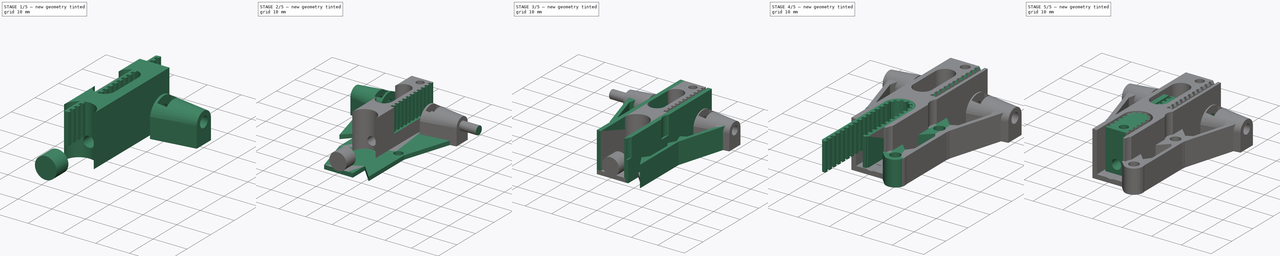
[diagram: build sequence overview — one tinted view per stage of 5, left to right]
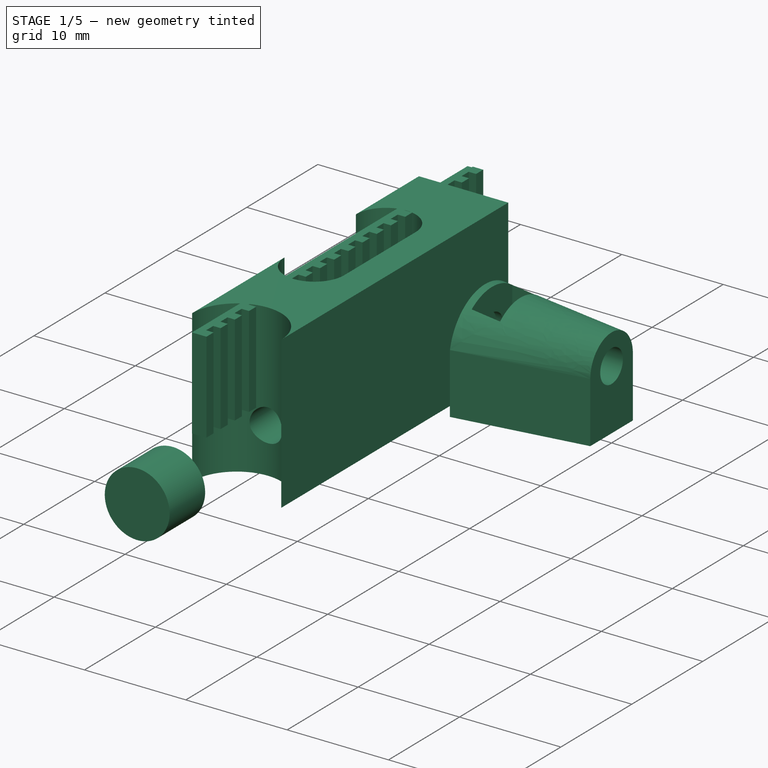
[diagram: stage 1 of 5 — iso view after this stage's code; geometry added in this stage tinted green]
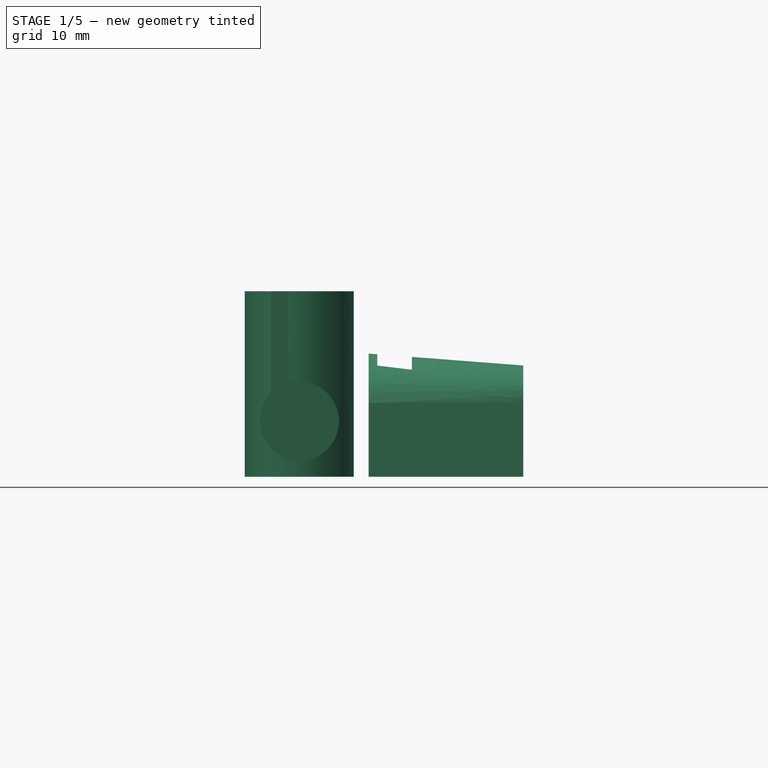
[diagram: stage 1 of 5 — front view after this stage's code; geometry added in this stage tinted green]
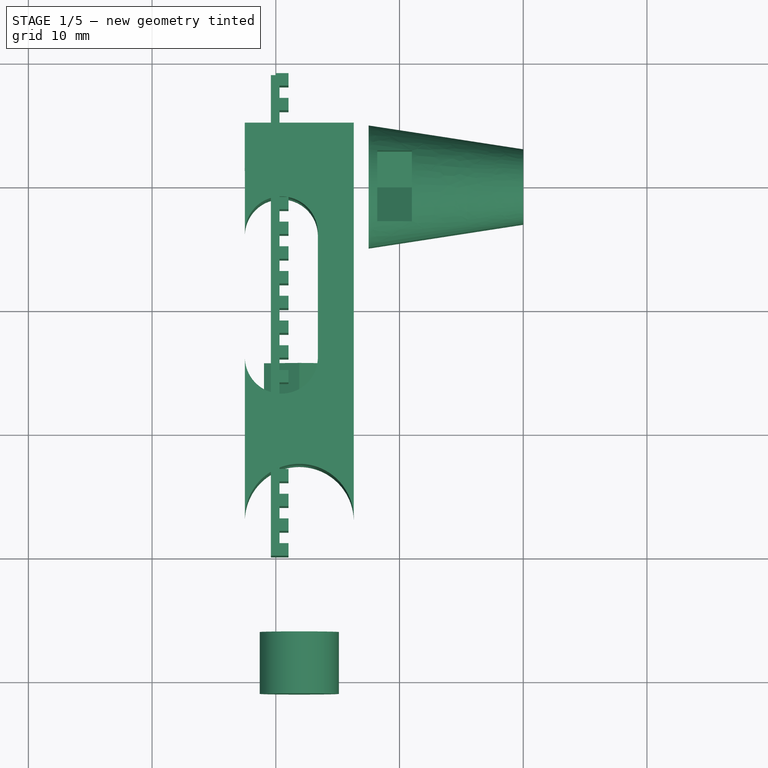
[diagram: stage 1 of 5 — top view after this stage's code; geometry added in this stage tinted green]
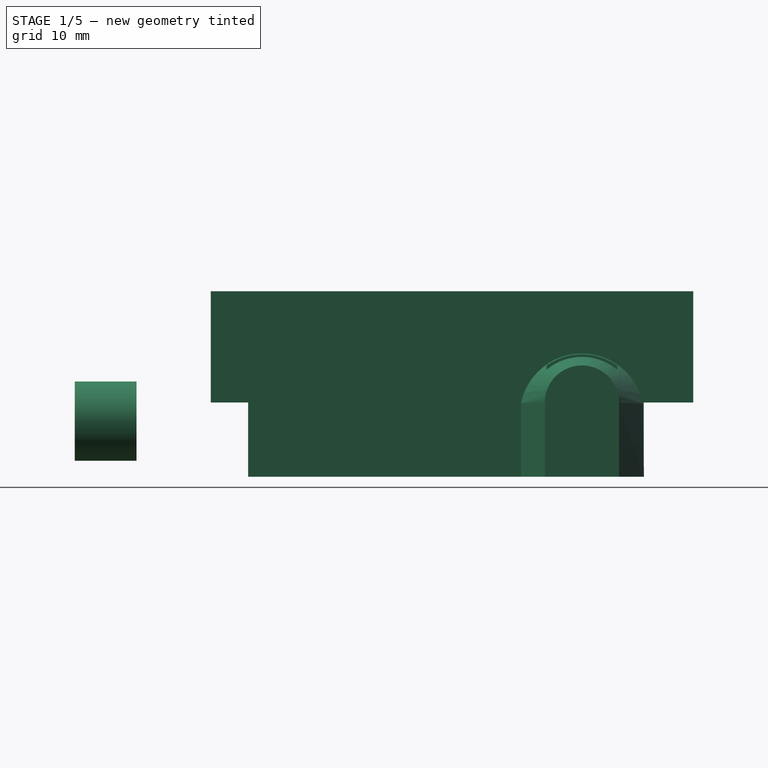
[diagram: stage 1 of 5 — right view after this stage's code; geometry added in this stage tinted green]
FCSTD DOCUMENT  (FreeCAD 0.17R13541 (Git))
Label: kossel_carriage
License: All rights reserved
LicenseURL: http://en.wikipedia.org/wiki/All_rights_reserved
objects: Part::Part2DObjectPython×36, Sketcher::SketchObject×35, Part::Extrusion×33, Part::Cut×28, Part::FeaturePython×11, Part::Mirroring×8, Part::MultiFuse×8, Part::Loft×1, Part::MultiCommon×1, Part::Sweep×1
note: 162 computed .brp shape members not serialized (recipe doc carries the construction recipe); baked Part::Feature solids carry a one-line shape summary decoded from their .brp

FEATURE [Sketcher::SketchObject] Sketch002
  Placement = pos=(0,30,6) rot=(0.57735,0.57735,0.57735;2.0944rad)
  sketch-geometry (1):
    g0: Circle CenterX=0 CenterY=0 CenterZ=0 NormalX=0 NormalY=0 NormalZ=1 AngleXU=0 Radius=1.6
  constraints (2):
    c: Coincident(g0,g-1)
    c: Radius(g0) = 1.6
FEATURE [Part::Part2DObjectPython] DWire001  # Draft 2D object (typed FeaturePython)
  Base = -> Sketch002
  ChamferSize = 0
  Closed = true
  End = (0,0,0)
  FilletRadius = 0
  Length = 0
  MakeFace = true
  Points = (1) [(3.33067e-16,31.5,5)]
  Start = (0,0,0)
  Subdivisions = 0
FEATURE [Part::Extrusion] Extrude003  label="otwor sruby 4"
  Base = -> DWire001
  Dir = (1,0,0)
  DirMode = 0
  FaceMakerClass = Part::FaceMakerBullseye
  LengthFwd = 20
  LengthRev = 0
  Placement = pos=(6.3,0,0) rot=(0,0,1;0rad)
  Solid = true
  Symmetric = false
FEATURE [Sketcher::SketchObject] Sketch003
  Placement = pos=(20,0,0) rot=(0.57735,0.57735,0.57735;2.0944rad)
  Support = -> [Extrude003]
  sketch-geometry (4):
    g0: LineSegment StartX=33 StartY=6 StartZ=0 EndX=33 EndY=0 EndZ=0
    g1: LineSegment StartX=33 StartY=0 StartZ=0 EndX=27 EndY=0 EndZ=0
    g2: LineSegment StartX=27 StartY=0 StartZ=0 EndX=27 EndY=6 EndZ=0
    g3: ArcOfCircle CenterX=30 CenterY=5.99999 CenterZ=0 NormalX=0 NormalY=0 NormalZ=1 AngleXU=0 Radius=3 StartAngle=1.92261e-06 EndAngle=3.14159
  constraints (13):
    c: Coincident(g0,g1)
    c: Coincident(g1,g2)
    c: Horizontal(g1)
    c: Vertical(g0)
    c: Vertical(g2)
    c: PointOnObject(g0,g-1)
    c: DistanceX(g1,g1) = 6
    c: Coincident(g3,g2)
    c: Coincident(g0,g3)
    c: DistanceY(g2,g0) = 0
    c: Radius(g3) = 3
    c: DistanceY(g-1,g0) = 6
    c: DistanceX(g-1,g2) = 27
FEATURE [Part::Part2DObjectPython] DWire002  label="koncowka ramienia"  # Draft 2D object (typed FeaturePython)
  Base = -> Sketch003
  ChamferSize = 0
  Closed = true
  End = (0,0,0)
  FilletRadius = 0
  Length = 0
  MakeFace = true
  Points = (1) [(20,32.5,5)]
  Start = (0,0,0)
  Subdivisions = 0
FEATURE [Sketcher::SketchObject] Sketch005
  Placement = pos=(0,0,0) rot=(0.57735,0.57735,0.57735;2.0944rad)
  sketch-geometry (7):
    g0: LineSegment StartX=32.8579 StartY=6.65 StartZ=0 EndX=30 EndY=8.3 EndZ=0
    g1: LineSegment StartX=30 StartY=8.3 StartZ=0 EndX=27.1421 EndY=6.65 EndZ=0
    g2: LineSegment StartX=27.1421 StartY=6.65 StartZ=0 EndX=27.1421 EndY=3.35 EndZ=0
    g3: LineSegment StartX=27.1421 StartY=3.35 StartZ=0 EndX=30 EndY=1.7 EndZ=0
    g4: LineSegment StartX=30 StartY=1.7 StartZ=0 EndX=32.8579 EndY=3.35 EndZ=0
    g5: LineSegment StartX=32.8579 StartY=3.35 StartZ=0 EndX=32.8579 EndY=6.65 EndZ=0
    g6: Circle [constr] CenterX=30 CenterY=5 CenterZ=0 NormalX=0 NormalY=0 NormalZ=1 AngleXU=0 Radius=3.3
  constraints (17):
    c: Coincident(g0,g1)
    c: Coincident(g1,g2)
    c: Coincident(g2,g3)
    c: Coincident(g3,g4)
    c: Coincident(g4,g5)
    c: Coincident(g5,g0)
    c: Equal(g0, g1-g5) x5
    c: PointOnObject(g0,g6)
    c: PointOnObject(g1,g6)
    c: PointOnObject(g2,g6)
    c: PointOnObject(g3,g6)
    c: PointOnObject(g4,g6)
    c: PointOnObject(g5,g6)
    c: DistanceY(g-1,g6) = 5
    c: DistanceX(g-1,g6) = 30
    c: Radius(g6) = 3.3
    c: DistanceX(g6,g0) = 0
FEATURE [Part::Part2DObjectPython] DWire004  label="nakretka face"  # Draft 2D object (typed FeaturePython)
  Base = -> Sketch005
  ChamferSize = 0
  Closed = true
  End = (0,32.0928,2.85057)
  FilletRadius = 0
  Length = 18
  MakeFace = true
  Points = (6) [(0,32.9079,5.73773),(0,30.815,7.88716),(0,27.9072,7.14943),(0,27.0921,4.26227),(0,29.185,2.11284),(0,32.0928,2.85057)]
  Start = (0,32.9079,5.73773)
  Subdivisions = 0
FEATURE [Part::Extrusion] Extrude004  label="nakretka"
  Base = -> DWire004
  Dir = (-1,0,0)
  DirMode = 0
  FaceMakerClass = Part::FaceMakerBullseye
  LengthFwd = 2.8
  LengthRev = 0
  Placement = pos=(11,0,0) rot=(0,0,1;0rad)
  Solid = true
  Symmetric = false
FEATURE [Sketcher::SketchObject] Sketch009
  Placement = pos=(7.5,0,0) rot=(0.57735,0.57735,0.57735;2.0944rad)
  sketch-geometry (4):
    g0: LineSegment StartX=34.9289 StartY=5.90349 StartZ=0 EndX=35.0129 EndY=0.015096 EndZ=0
    g1: LineSegment StartX=35.0129 StartY=0.015096 StartZ=0 EndX=25.072 EndY=0 EndZ=0
    g2: LineSegment StartX=25.072 StartY=0 StartZ=0 EndX=25.072 EndY=5.96285 EndZ=0
    g3: ArcOfCircle CenterX=29.9944 CenterY=4.92815 CenterZ=0 NormalX=0 NormalY=0 NormalZ=1 AngleXU=0 Radius=5.02998 StartAngle=0.195141 EndAngle=2.93441
  constraints (5):
    c: Coincident(g0,g1)
    c: Coincident(g1,g2)
    c: Coincident(g3,g2)
    c: Coincident(g3,g0)
    c: Parallel(g2,g-2)
FEATURE [Part::Part2DObjectPython] DWire006  label="podstawa ramienia"  # Draft 2D object (typed FeaturePython)
  Base = -> Sketch009
  ChamferSize = 0
  Closed = true
  End = (15,25.0018,0)
  FilletRadius = 0
  Length = 40.3824
  MakeFace = true
  Points = (4) [(15,25.0085,10.9794),(15,35.0129,9.25501),(15,35.0129,0.015096),(15,25.0018,-2.77576e-15)]
  Start = (15,25.0085,10.9794)
  Subdivisions = 0
FEATURE [Part::Loft] Loft  label="ramie"
  Closed = false
  MaxDegree = 5
  Ruled = false
  Sections = -> [DWire002,DWire006]
  Solid = true
FEATURE [Sketcher::SketchObject] Sketch011
  sketch-geometry (4):
    g0: LineSegment StartX=0 StartY=0 StartZ=0 EndX=1.0287 EndY=0 EndZ=0
    g1: LineSegment StartX=1.0287 StartY=0 StartZ=0 EndX=1.0287 EndY=1.00178 EndZ=0
    g2: LineSegment StartX=1.0287 StartY=1.00178 StartZ=0 EndX=0 EndY=1.00178 EndZ=0
    g3: LineSegment StartX=0 StartY=1.00178 StartZ=0 EndX=0 EndY=0 EndZ=0
  constraints (9):
    c: Coincident(g0,g1)
    c: Coincident(g1,g2)
    c: Coincident(g2,g3)
    c: Coincident(g3,g0)
    c: Horizontal(g0)
    c: Horizontal(g2)
    c: Vertical(g1)
    c: Vertical(g3)
    c: Coincident(g0,g-1)
FEATURE [Part::Part2DObjectPython] DWire007  # Draft 2D object (typed FeaturePython)
  Base = -> Sketch011
  ChamferSize = 0
  Closed = true
  End = (0,1.00178,0)
  FilletRadius = 0
  Length = 4.06097
  MakeFace = true
  Points = (4) [(0,0,0),(1.0287,0,0),(1.0287,1.00178,0),(0,1.00178,0)]
  Start = (0,0,0)
  Subdivisions = 0
FEATURE [Part::Extrusion] Extrude007
  Base = -> DWire007
  Dir = (0,0,1)
  DirMode = 2
  FaceMakerClass = Part::FaceMakerBullseye
  LengthFwd = 9
  LengthRev = 0
  Placement = pos=(0,0,6) rot=(0,0,1;0rad)
  Solid = true
  Symmetric = false
FEATURE [Sketcher::SketchObject] Sketch014
  Placement = pos=(0,0,0) rot=(1,0,0;1.5708rad)
  sketch-geometry (1):
    g0: Circle CenterX=1.9 CenterY=4.5 CenterZ=0 NormalX=0 NormalY=0 NormalZ=1 AngleXU=0 Radius=1.6
  constraints (3):
    c: Radius(g0) = 1.6
    c: DistanceY(g-1,g0) = 4.5
    c: DistanceX(g-1,g0) = 1.9
FEATURE [Part::Part2DObjectPython] DWire009  # Draft 2D object (typed FeaturePython)
  Base = -> Sketch014
  ChamferSize = 0
  Closed = true
  End = (0,0,0)
  FilletRadius = 0
  Length = 0
  MakeFace = true
  Points = (1) [(2.5,2.33147e-15,10.5)]
  Start = (0,0,0)
  Subdivisions = 0
FEATURE [Part::Extrusion] Extrude013  label="sruba naciag"
  Base = -> DWire009
  Dir = (0,1,0)
  DirMode = 0
  FaceMakerClass = Part::FaceMakerBullseye
  LengthFwd = 45
  LengthRev = 0
  Placement = pos=(0,-9,0) rot=(0,0,1;0rad)
  Solid = true
  Symmetric = false
FEATURE [Part::FeaturePython] Array001  label="zeby paska"  # Draft array (typed FeaturePython)
  Angle = 360
  ArrayType = 0
  Axis = (0,0,1)
  Base = -> Extrude007
  Center = (0,0,0)
  Fuse = false
  IntervalAxis = (0,0,0)
  IntervalX = (1,0,0)
  IntervalY = (0,2,0)
  IntervalZ = (0,0,0)
  NumberPolar = 0
  NumberX = 1
  NumberY = 20
  NumberZ = 1
FEATURE [Sketcher::SketchObject] Sketch022
  sketch-geometry (4):
    g0: LineSegment StartX=-0.4 StartY=38.8397 StartZ=0 EndX=0.3 EndY=38.8397 EndZ=0
    g1: LineSegment StartX=0.3 StartY=38.8397 StartZ=0 EndX=0.3 EndY=0 EndZ=0
    g2: LineSegment StartX=0.3 StartY=0 StartZ=0 EndX=-0.4 EndY=0 EndZ=0
    g3: LineSegment StartX=-0.4 StartY=0 StartZ=0 EndX=-0.4 EndY=38.8397 EndZ=0
  constraints (11):
    c: Coincident(g0,g1)
    c: Coincident(g1,g2)
    c: Coincident(g2,g3)
    c: Coincident(g3,g0)
    c: Horizontal(g0)
    c: Horizontal(g2)
    c: Vertical(g1)
    c: Vertical(g3)
    c: PointOnObject(g1,g-1)
    c: DistanceX(g-1,g1) = 0.3
    c: Distance(g0) = 0.7
FEATURE [Part::Part2DObjectPython] DWire016  # Draft 2D object (typed FeaturePython)
  Base = -> Sketch022
  ChamferSize = 0
  Closed = true
  End = (-0.2,0,0)
  FilletRadius = 0
  Length = 78.8794
  MakeFace = true
  Points = (4) [(-0.2,38.8397,0),(0.4,38.8397,0),(0.4,0,0),(-0.2,0,0)]
  Start = (-0.2,38.8397,0)
  Subdivisions = 0
FEATURE [Part::Extrusion] Extrude019  label="podstawa paska"
  Base = -> DWire016
  Dir = (0,0,1)
  DirMode = 2
  FaceMakerClass = Part::FaceMakerBullseye
  LengthFwd = 9
  LengthRev = 0
  Placement = pos=(0,0,6) rot=(0,0,1;0rad)
  Solid = true
  Symmetric = false
FEATURE [Part::MultiFuse] Fusion002  label="pasek"
  Refine = true
  Shapes = -> [Extrude019,Array001]
FEATURE [Sketcher::SketchObject] Sketch035
  sketch-geometry (4):
    g0: LineSegment StartX=-7.5441 StartY=35.0308 StartZ=0 EndX=-3.0081 EndY=35.0308 EndZ=0
    g1: LineSegment StartX=-3.0081 StartY=35.0308 StartZ=0 EndX=-3.0081 EndY=24.9787 EndZ=0
    g2: LineSegment StartX=-3.0081 StartY=24.9787 StartZ=0 EndX=-7.5441 EndY=24.9787 EndZ=0
    g3: LineSegment StartX=-7.5441 StartY=24.9787 StartZ=0 EndX=-7.5441 EndY=35.0308 EndZ=0
  constraints (8):
    c: Coincident(g0,g1)
    c: Coincident(g1,g2)
    c: Coincident(g2,g3)
    c: Coincident(g3,g0)
    c: Horizontal(g0)
    c: Horizontal(g2)
    c: Vertical(g1)
    c: Vertical(g3)
FEATURE [Part::Part2DObjectPython] DWire029  # Draft 2D object (typed FeaturePython)
  Base = -> Sketch035
  ChamferSize = 0
  Closed = true
  End = (-7.70992,24.9444,40)
  FilletRadius = 0
  Length = 50.7703
  MakeFace = true
  Points = (4) [(-7.70992,34.9531,40),(7.66655,34.9531,40),(7.66655,24.9444,40),(-7.70992,24.9444,40)]
  Start = (-7.70992,34.9531,40)
  Subdivisions = 0
FEATURE [Sketcher::SketchObject] Sketch036
  ExternalGeometry = -> [Extrude004]
  Placement = pos=(0,0,6) rot=(0,0,1;0rad)
  sketch-geometry (4):
    g0: LineSegment StartX=8.2 StartY=32.8579 StartZ=0 EndX=11 EndY=32.8579 EndZ=0
    g1: LineSegment StartX=11 StartY=32.8579 StartZ=0 EndX=11 EndY=27.1417 EndZ=0
    g2: LineSegment StartX=11 StartY=27.1417 StartZ=0 EndX=8.2 EndY=27.1417 EndZ=0
    g3: LineSegment StartX=8.2 StartY=27.1417 StartZ=0 EndX=8.2 EndY=32.8579 EndZ=0
  constraints (10):
    c: Coincident(g0,g1)
    c: Coincident(g1,g2)
    c: Coincident(g2,g3)
    c: Coincident(g3,g0)
    c: Horizontal(g0)
    c: Horizontal(g2)
    c: Vertical(g1)
    c: Vertical(g3)
    c: DistanceX(g2,g2) = 2.8
    c: Coincident(g-3,g0)
FEATURE [Part::Part2DObjectPython] DWire030  # Draft 2D object (typed FeaturePython)
  Base = -> Sketch036
  ChamferSize = 0
  Closed = true
  End = (6.89465,26.9901,0)
  FilletRadius = 0
  Length = 20.5567
  MakeFace = true
  Points = (4) [(6.89465,33.004,0),(11.1591,33.004,0),(11.1591,26.9901,0),(6.89465,26.9901,0)]
  Start = (6.89465,33.004,0)
  Subdivisions = 0
FEATURE [Part::Extrusion] Extrude034  label="OTWOR NA NAKRETKE"
  Base = -> DWire030
  Dir = (0,0,1)
  DirMode = 2
  FaceMakerClass = Part::FaceMakerBullseye
  LengthFwd = 5
  LengthRev = 0
  Solid = true
  Symmetric = false
FEATURE [Part::Cut] Cut020  label="RAMIE PRAWE Z WPUSTEM NA NAKRETKE"
  Base = -> Loft
  Refine = true
  Tool = -> Extrude034
FEATURE [Part::Cut] Cut025  label="RAMIE P"
  Base = -> Cut020
  Refine = true
  Tool = -> Extrude004
FEATURE [Part::Cut] Cut026  label="RAMIE P001"
  Base = -> Cut025
  Refine = true
  Tool = -> Extrude003
FEATURE [Sketcher::SketchObject] Sketch037
  sketch-geometry (8):
    g0: LineSegment StartX=6.3 StartY=35 StartZ=0 EndX=6.3 EndY=3.01859 EndZ=0
    g1: LineSegment StartX=-2.5 StartY=3.01859 StartZ=0 EndX=-2.5 EndY=16.0439 EndZ=0
    g2: ArcOfCircle CenterX=1.9 CenterY=3.01859 CenterZ=0 NormalX=0 NormalY=0 NormalZ=1 AngleXU=0 Radius=4.4 StartAngle=1.5729e-08 EndAngle=3.14159
    g3: ArcOfCircle CenterX=0.45 CenterY=16.0439 CenterZ=0 NormalX=0 NormalY=0 NormalZ=1 AngleXU=0 Radius=2.95 StartAngle=3.14159 EndAngle=6.28319
    g4: LineSegment StartX=3.4 StartY=26.0916 StartZ=0 EndX=3.4 EndY=16.0439 EndZ=0
    g5: ArcOfCircle CenterX=0.45 CenterY=26.0916 CenterZ=0 NormalX=0 NormalY=0 NormalZ=1 AngleXU=0 Radius=2.95 StartAngle=6.28319 EndAngle=9.42478
    g6: LineSegment StartX=-2.5 StartY=26.0916 StartZ=0 EndX=-2.50781 EndY=35 EndZ=0
    g7: LineSegment StartX=-2.50781 StartY=35 StartZ=0 EndX=6.3 EndY=35 EndZ=0
  constraints (20):
    c: Vertical(g0)
    c: Vertical(g1)
    c: Coincident(g1,g3)
    c: Coincident(g1,g2)
    c: Coincident(g0,g2)
    c: Coincident(g4,g3)
    c: Vertical(g4)
    c: Radius(g2) = 4.4
    c: DistanceX(g3) = 3.4
    c: DistanceX(g0) = 6.3
    c: DistanceX(g1) = -2.5
    c: Radius(g3) = 2.95
    c: Coincident(g5,g4)
    c: Coincident(g5,g6)
    c: Coincident(g6,g7)
    c: Coincident(g7,g0)
    c: Horizontal(g7)
    c: Radius(g5) = 2.95
    c: DistanceX(g5) = -2.5
    c: DistanceY(g0) = 35
FEATURE [Part::Part2DObjectPython] DWire031  # Draft 2D object (typed FeaturePython)
  Base = -> Sketch037
  ChamferSize = 0
  Closed = true
  End = (-3.96878,8,20)
  FilletRadius = 0
  Length = 29.8688
  MakeFace = true
  Points = (4) [(-3.96878,12,20),(6.96564,12,20),(6.96564,8,20),(-3.96878,8,20)]
  Start = (-3.96878,12,20)
  Subdivisions = 0
FEATURE [Part::Extrusion] Extrude035  label="sciana naciagu"
  Base = -> DWire031
  Dir = (0,0,1)
  DirMode = 2
  FaceMakerClass = Part::FaceMakerBullseye
  LengthFwd = 15
  LengthRev = 0
  Solid = true
  Symmetric = false
FEATURE [Part::Cut] Cut029  label="sciana naciagu001"
  Base = -> Extrude035
  Refine = true
  Tool = -> Extrude013
FEATURE [Part::FeaturePython] Clone006  label="NAKRETKA NACIAGU"  # Draft clone (typed FeaturePython)
  AttacherType = Attacher::AttachEngine3D
  Fuse = false
  Objects = -> [Extrude004]
  Placement = pos=(31.9,15.7,-0.5) rot=(0,0,1;1.5708rad)
  Scale = (1,1,1)
FEATURE [Sketcher::SketchObject] Sketch041
  Placement = pos=(0,0,5) rot=(0,0,1;0rad)
  sketch-geometry (1):
    g0: Circle CenterX=2.4228 CenterY=32.4931 CenterZ=0 NormalX=0 NormalY=0 NormalZ=1 AngleXU=0 Radius=1.4
FEATURE [Part::Part2DObjectPython] DWire034  # Draft 2D object (typed FeaturePython)
  Base = -> Sketch041
  ChamferSize = 0
  Closed = true
  End = (0,0,0)
  FilletRadius = 0
  Length = 0
  MakeFace = true
  Points = (1) [(2.81852,27.2482,30)]
  Start = (0,0,0)
  Subdivisions = 0
FEATURE [Part::Extrusion] Extrude037  label="otwor na wkret"
  Base = -> DWire034
  Dir = (0,0,1)
  DirMode = 2
  FaceMakerClass = Part::FaceMakerBullseye
  LengthFwd = 10
  LengthRev = 0
  Solid = true
  Symmetric = false
FEATURE [Part::FeaturePython] Clone007  label="RAMIE P002"  # Draft clone (typed FeaturePython)
  AttacherType = Attacher::AttachEngine3D
  Fuse = false
  Objects = -> [Cut026]
  Scale = (1,1,1)
FEATURE [Sketcher::SketchObject] Sketch045
  Placement = pos=(0,0,0) rot=(1,0,0;1.5708rad)
  sketch-geometry (1):
    g0: Circle CenterX=1.9 CenterY=4.5 CenterZ=0 NormalX=0 NormalY=0 NormalZ=1 AngleXU=0 Radius=3.2
  constraints (3):
    c: Radius(g0) = 3.2
    c: DistanceY(g-1,g0) = 4.5
    c: DistanceX(g-1,g0) = 1.9
FEATURE [Part::Part2DObjectPython] DWire038  # Draft 2D object (typed FeaturePython)
  Base = -> Sketch045
  ChamferSize = 0
  Closed = true
  End = (0,0,0)
  FilletRadius = 0
  Length = 0
  MakeFace = true
  Points = (1) [(2.5,2.33147e-15,10.5)]
  Start = (0,0,0)
  Subdivisions = 0
FEATURE [Part::Extrusion] Extrude041  label="otwor na leb sruby naciagu"
  Base = -> DWire038
  Dir = (0,1,0)
  DirMode = 0
  FaceMakerClass = Part::FaceMakerBullseye
  LengthFwd = 5
  LengthRev = 0
  Placement = pos=(0,-11,0) rot=(0,0,1;0rad)
  Solid = true
  Symmetric = false
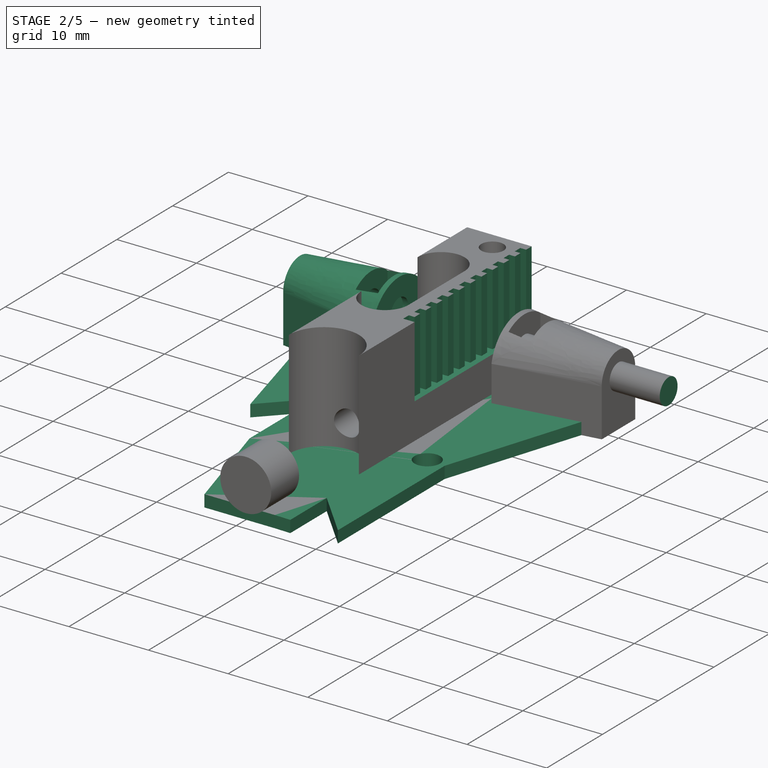
[diagram: stage 2 of 5 — iso view after this stage's code; geometry added in this stage tinted green]
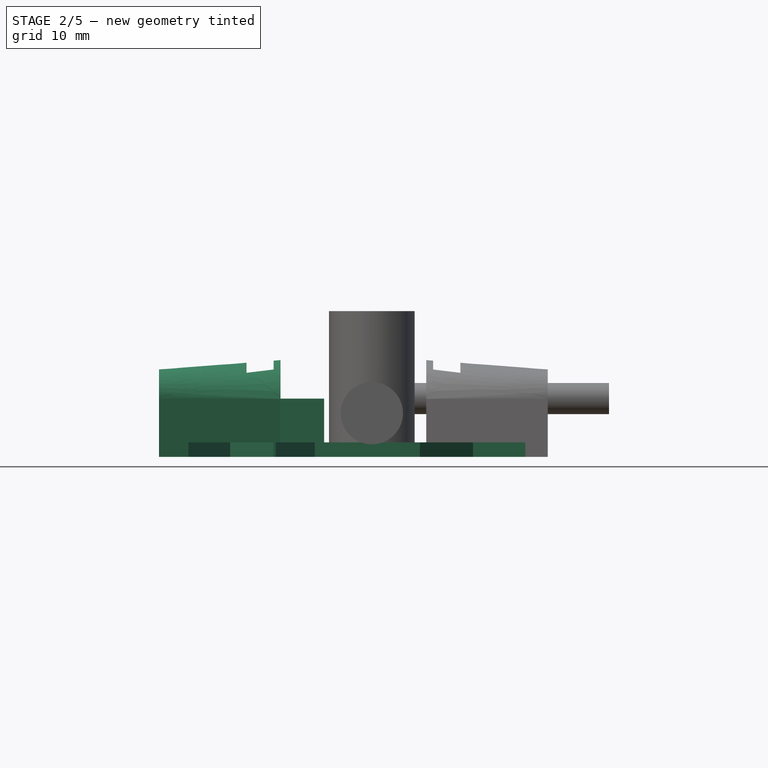
[diagram: stage 2 of 5 — front view after this stage's code; geometry added in this stage tinted green]
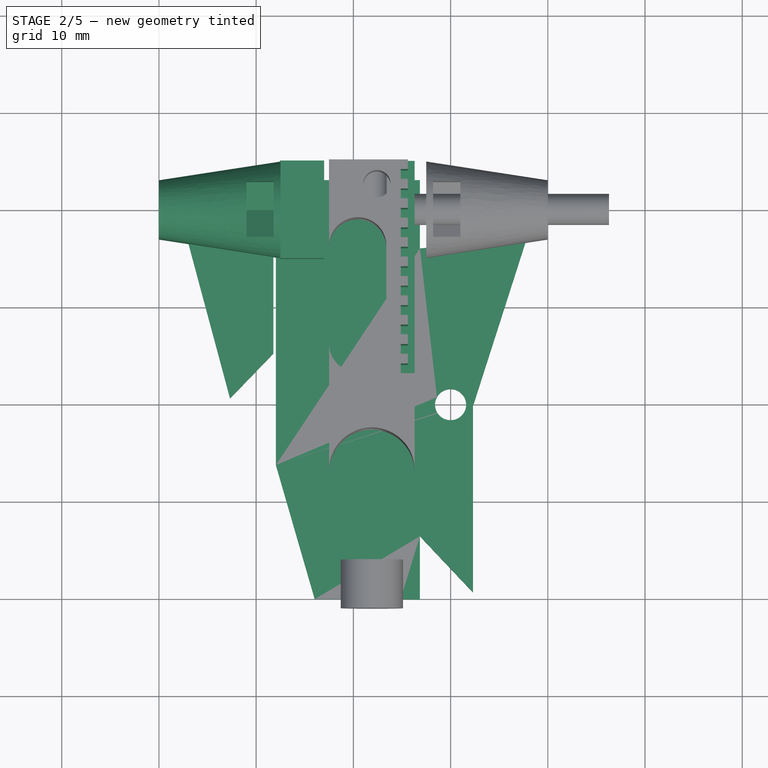
[diagram: stage 2 of 5 — top view after this stage's code; geometry added in this stage tinted green]
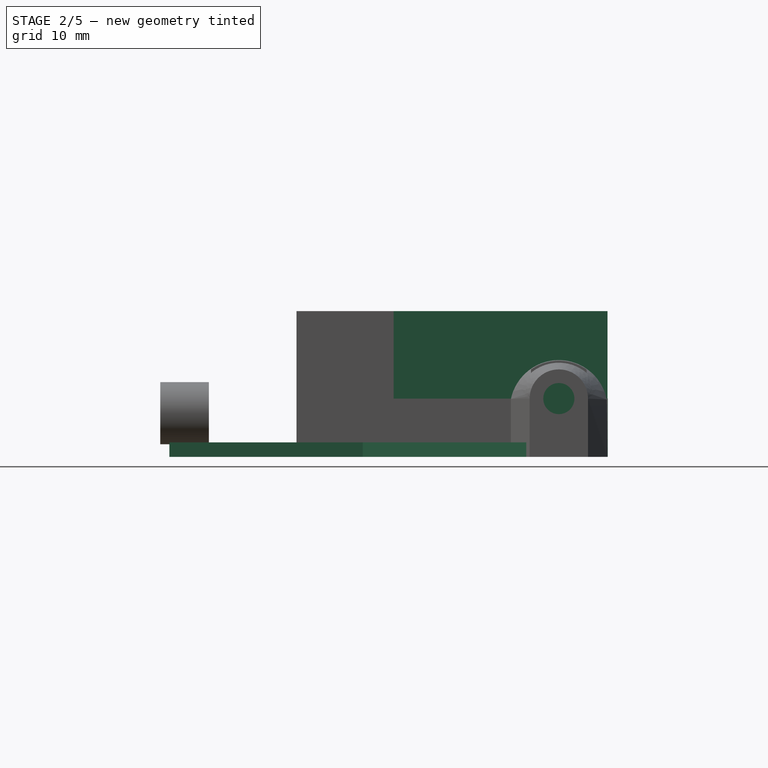
[diagram: stage 2 of 5 — right view after this stage's code; geometry added in this stage tinted green]
FEATURE [Sketcher::SketchObject] Sketch
  sketch-geometry (1):
    g0: Circle CenterX=10 CenterY=10 CenterZ=0 NormalX=0 NormalY=0 NormalZ=1 AngleXU=0 Radius=1.6
  constraints (3):
    c: Radius(g0) = 1.6
    c: DistanceX(g-1,g0) = 10
    c: DistanceY(g-1,g0) = 10
FEATURE [Part::Part2DObjectPython] DWire  label="sruba prawa gora"  # Draft 2D object (typed FeaturePython)
  Base = -> Sketch
  ChamferSize = 0
  Closed = true
  End = (0,0,0)
  FilletRadius = 0
  Length = 0
  MakeFace = true
  Points = (1) [(11.5,10,0)]
  Start = (0,0,0)
  Subdivisions = 0
FEATURE [Part::Part2DObjectPython] Clone2D  label="sruba lewa gora"  # Draft 2D object (typed FeaturePython)
  Fuse = false
  Objects = -> [DWire]
  Placement = pos=(-20,0,0) rot=(0,0,1;0rad)
  Scale = (1,1,1)
FEATURE [Part::Part2DObjectPython] Clone2D001  label="sruba dol"  # Draft 2D object (typed FeaturePython)
  Fuse = false
  Objects = -> [DWire]
  Placement = pos=(0,-20,0) rot=(0,0,1;0rad)
  Scale = (1,1,1)
FEATURE [Part::Extrusion] Extrude  label="otwor sruby 1"
  Base = -> DWire
  Dir = (0,0,1)
  DirMode = 2
  FaceMakerClass = Part::FaceMakerBullseye
  LengthFwd = 13
  LengthRev = 0
  Solid = true
  Symmetric = false
FEATURE [Sketcher::SketchObject] Sketch029
  sketch-geometry (6):
    g0: LineSegment StartX=-7.9685 StartY=3.78498 StartZ=0 EndX=-7.9685 EndY=33.0926 EndZ=0
    g1: LineSegment StartX=-7.9685 StartY=33.0926 StartZ=0 EndX=6.84609 EndY=33.0926 EndZ=0
    g2: LineSegment StartX=-7.9685 StartY=3.78498 StartZ=0 EndX=-3.97437 EndY=-10.0129 EndZ=0
    g3: LineSegment StartX=-3.97437 StartY=-10.0129 StartZ=0 EndX=4.86148 EndY=-10.0129 EndZ=0
    g4: LineSegment StartX=6.84609 StartY=33.0926 StartZ=0 EndX=6.84609 EndY=-10.0673 EndZ=0
    g5: LineSegment StartX=6.84609 StartY=-10.0673 StartZ=0 EndX=4.86148 EndY=-10.0129 EndZ=0
  constraints (10):
    c: Vertical(g0)
    c: Coincident(g0,g1)
    c: Horizontal(g1)
    c: Coincident(g0,g2)
    c: Coincident(g2,g3)
    c: Coincident(g1,g4)
    c: Vertical(g4)
    c: Coincident(g4,g5)
    c: Coincident(g3,g5)
    c: Horizontal(g3)
FEATURE [Part::Part2DObjectPython] DWire023  # Draft 2D object (typed FeaturePython)
  Base = -> Sketch029
  ChamferSize = 0
  Closed = true
  End = (4.8638,34.887,0)
  FilletRadius = 0
  Length = 106.016
  MakeFace = true
  Points = (4) [(4.8638,-9.04732,0),(-7.9685,3.78498,0),(-7.9685,34.887,0),(4.8638,34.887,0)]
  Start = (4.8638,-9.04732,0)
  Subdivisions = 0
FEATURE [Part::Extrusion] Extrude026  label="postawa"
  Base = -> DWire023
  Dir = (0,0,1)
  DirMode = 2
  FaceMakerClass = Part::FaceMakerBullseye
  LengthFwd = 1.5
  LengthRev = 0
  Solid = true
  Symmetric = false
FEATURE [Sketcher::SketchObject] Sketch031
  sketch-geometry (4):
    g0: LineSegment StartX=-17.0649 StartY=26.9432 StartZ=0 EndX=-8.22316 EndY=26.4565 EndZ=0
    g1: LineSegment StartX=-8.22316 StartY=26.4565 StartZ=0 EndX=-8.22316 EndY=15.2625 EndZ=0
    g2: LineSegment StartX=-8.22316 StartY=15.2625 StartZ=0 EndX=-12.6846 EndY=10.6387 EndZ=0
    g3: LineSegment StartX=-12.6846 StartY=10.6387 StartZ=0 EndX=-17.0649 EndY=26.9432 EndZ=0
  constraints (5):
    c: Coincident(g0,g1)
    c: Vertical(g1)
    c: Coincident(g1,g2)
    c: Coincident(g2,g3)
    c: Coincident(g3,g0)
FEATURE [Part::Part2DObjectPython] DWire025  # Draft 2D object (typed FeaturePython)
  Base = -> Sketch031
  ChamferSize = 0
  Closed = true
  End = (-12.8948,9.93379,0)
  FilletRadius = 0
  Length = 49.1137
  MakeFace = true
  Points = (4) [(-19.909,27.2248,0),(-7.40297,25.4304,0),(-7.40297,15.2625,0),(-12.8948,9.93379,0)]
  Start = (-19.909,27.2248,0)
  Subdivisions = 0
FEATURE [Part::Extrusion] Extrude029  label="lewa pletwa"
  Base = -> DWire025
  Dir = (0,0,1)
  DirMode = 2
  FaceMakerClass = Part::FaceMakerBullseye
  LengthFwd = 1.5
  LengthRev = 0
  Solid = true
  Symmetric = false
FEATURE [Sketcher::SketchObject] Sketch032
  sketch-geometry (5):
    g0: LineSegment StartX=5.48556 StartY=25.9571 StartZ=0 EndX=17.8153 EndY=27.0243 EndZ=0
    g1: LineSegment StartX=17.8153 StartY=27.0243 StartZ=0 EndX=12.2994 EndY=9.82756 EndZ=0
    g2: LineSegment StartX=12.2994 StartY=9.82756 StartZ=0 EndX=12.2994 EndY=-9.31598 EndZ=0
    g3: LineSegment StartX=12.2994 StartY=-9.31598 StartZ=0 EndX=5.48556 EndY=-2.0966 EndZ=0
    g4: LineSegment StartX=5.48556 StartY=-2.0966 StartZ=0 EndX=5.48556 EndY=25.9571 EndZ=0
  constraints (7):
    c: Coincident(g0,g1)
    c: Coincident(g1,g2)
    c: Coincident(g2,g3)
    c: Coincident(g3,g4)
    c: PointOnObject(g4,g0)
    c: Vertical(g4)
    c: Coincident(g4,g0)
FEATURE [Part::Part2DObjectPython] DWire026  # Draft 2D object (typed FeaturePython)
  Base = -> Sketch032
  ChamferSize = 0
  Closed = true
  End = (4.92619,-3.87892,0)
  FilletRadius = 0
  Length = 94.2679
  MakeFace = true
  Points = (5) [(4.92619,25.9571,0),(19.9826,27.1672,0),(12.8595,-10.7844,0),(11.6089,-8.55509,0),(4.92619,-3.87892,0)]
  Start = (4.92619,25.9571,0)
  Subdivisions = 0
FEATURE [Part::Extrusion] Extrude030  label="prawa pletwa"
  Base = -> DWire026
  Dir = (0,0,1)
  DirMode = 2
  FaceMakerClass = Part::FaceMakerBullseye
  LengthFwd = 1.5
  LengthRev = 0
  Solid = true
  Symmetric = false
FEATURE [Part::Cut] Cut019  label="prawa pletwa001"
  Base = -> Extrude030
  Refine = true
  Tool = -> Extrude
FEATURE [Part::Mirroring] Part__Mirroring007  label="ramie lle"
  Base = (0,0,0)
  Normal = (1,0,0)
  Source = -> Cut026
FEATURE [Part::Mirroring] Part__Mirroring  label="pasek (Mirror #6)"
  Base = (0,0,0)
  Normal = (1,0,0)
  Placement = pos=(5.9,13,0) rot=(1,0,0;0rad)
  Source = -> Fusion002
FEATURE [Part::Cut] Cut031  label="sciana naciagu002"
  Base = -> Cut029
  Refine = true
  Tool = -> Part__Mirroring
FEATURE [Part::Cut] Cut032  label="SCIANA NACIAGU"
  Base = -> Cut031
  Refine = true
  Tool = -> Clone006
FEATURE [Part::Mirroring] Part__Mirroring008  label="nakretka (Mirror #7)"
  Base = (0,0,0)
  Normal = (1,0,0)
  Source = -> Extrude004
FEATURE [Part::Extrusion] Extrude033  label="WZMOCNIENIE GORNE"
  Base = -> DWire029
  Dir = (0,0,1)
  DirMode = 2
  FaceMakerClass = Part::FaceMakerBullseye
  LengthFwd = 6
  LengthRev = 0
  Solid = true
  Symmetric = false
FEATURE [Part::Cut] Cut036  label="sciana naciagu003"
  Base = -> Cut032
  Refine = true
  Tool = -> Extrude037
FEATURE [Part::FeaturePython] Clone008  label="sruba naciag001"  # Draft clone (typed FeaturePython)
  AttacherType = Attacher::AttachEngine3D
  Fuse = false
  Objects = -> [Extrude013]
  Placement = pos=(0,-9,0) rot=(0,0,1;0rad)
  Scale = (1,1,1)
FEATURE [Part::Cut] Cut038
  Base = -> Extrude033
  Refine = true
  Tool = -> Part__Mirroring008
FEATURE [Part::FeaturePython] Clone009  label="otwor sruby 005"  # Draft clone (typed FeaturePython)
  AttacherType = Attacher::AttachEngine3D
  Fuse = false
  Objects = -> [Extrude003]
  Placement = pos=(6.3,0,0) rot=(0,0,1;0rad)
  Scale = (1,1,1)
FEATURE [Part::Cut] Cut039  label="wzmocnienie gorne"
  Base = -> Cut038
  Refine = true
  Tool = -> Clone008
FEATURE [Part::MultiFuse] Fusion008  label="podstawa"
  Refine = true
  Shapes = -> [Extrude029,Cut019,Extrude026]
FEATURE [Part::MultiFuse] Fusion009  label="ramiona i naciag"
  Refine = true
  Shapes = -> [Cut036,Part__Mirroring007,Clone007]
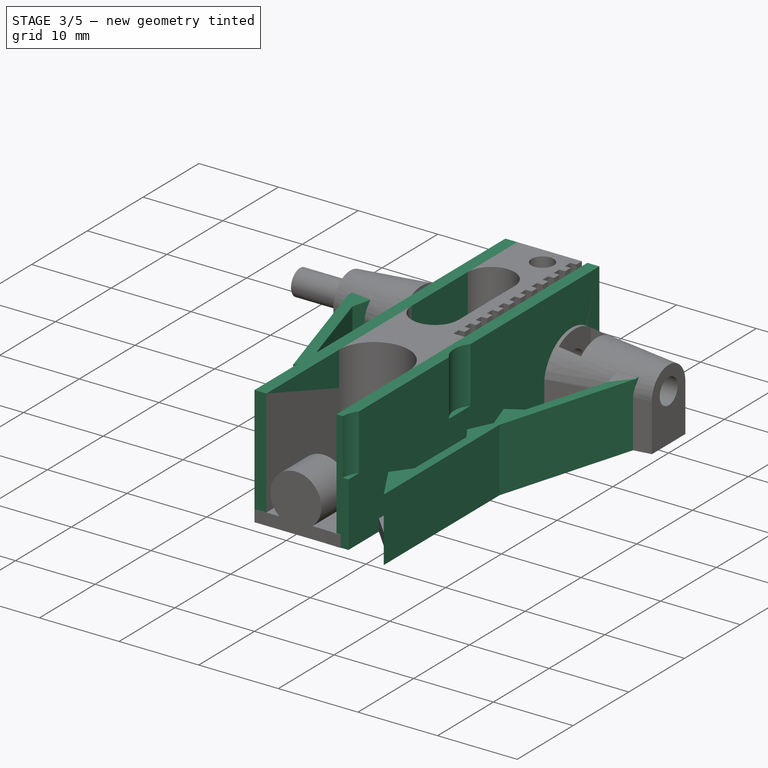
[diagram: stage 3 of 5 — iso view after this stage's code; geometry added in this stage tinted green]
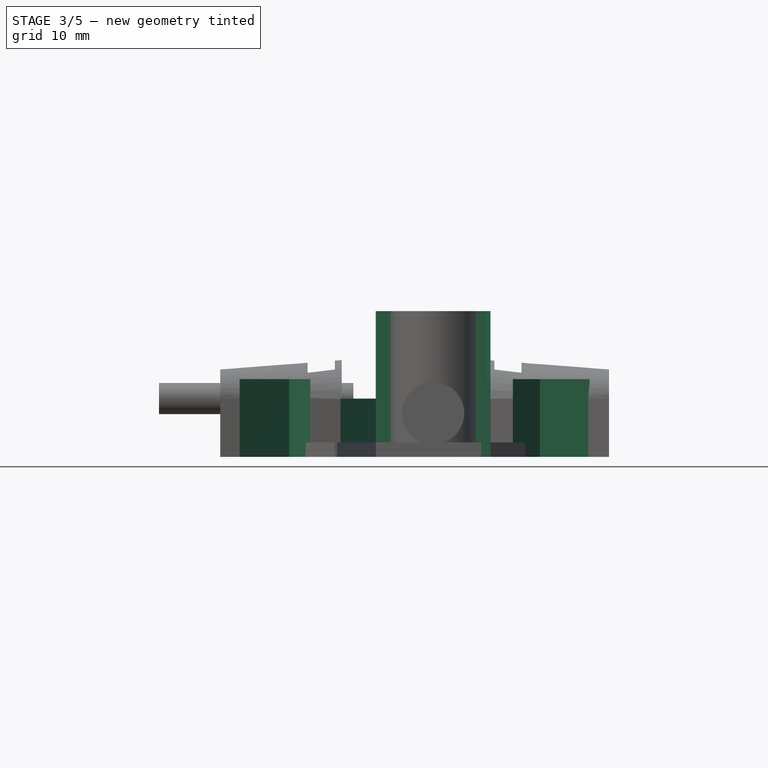
[diagram: stage 3 of 5 — front view after this stage's code; geometry added in this stage tinted green]
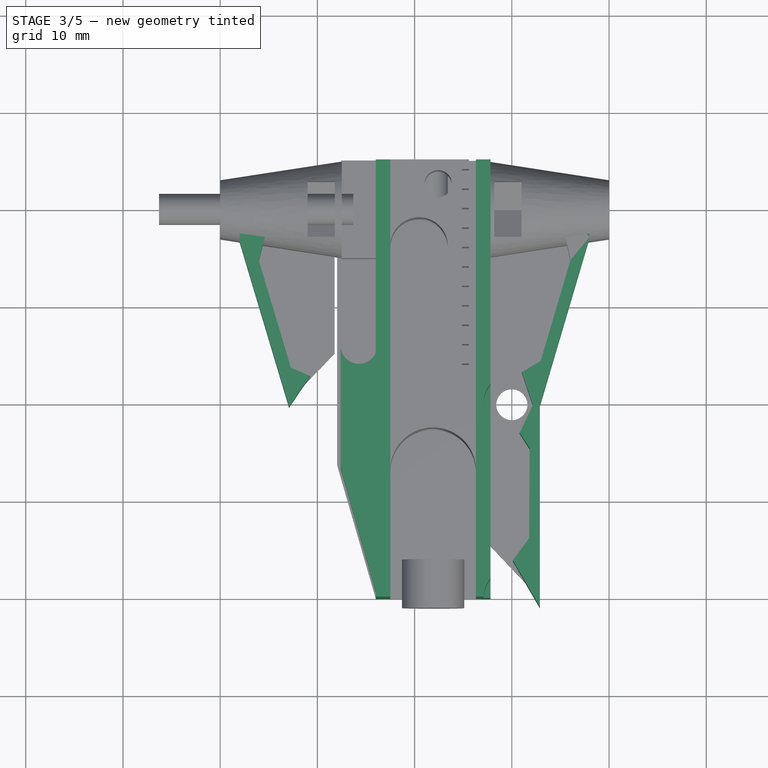
[diagram: stage 3 of 5 — top view after this stage's code; geometry added in this stage tinted green]
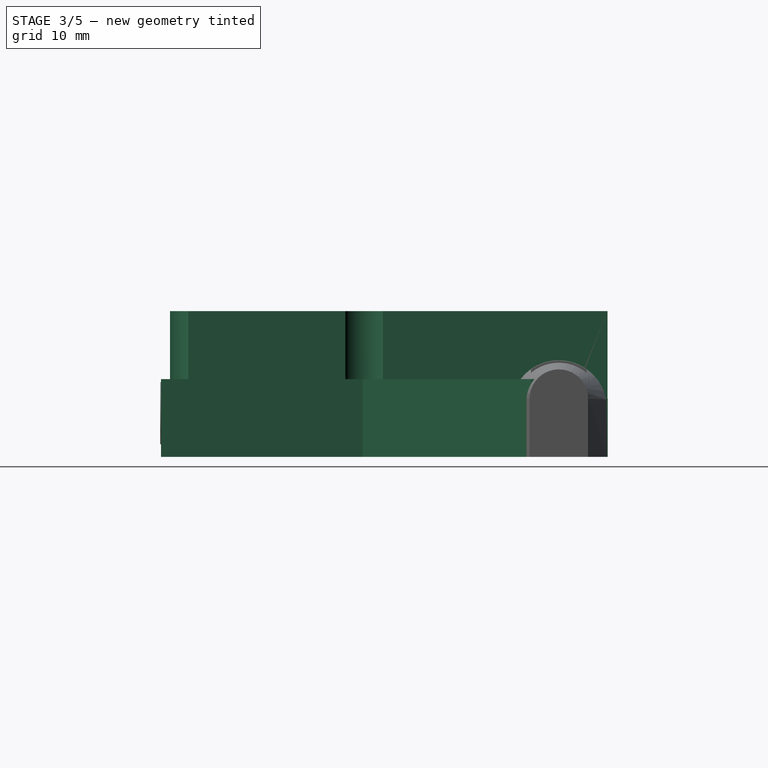
[diagram: stage 3 of 5 — right view after this stage's code; geometry added in this stage tinted green]
FEATURE [Part::Mirroring] Part__Mirroring002  label="otwor sruby 4 (Mirror #3)"
  Base = (0,0,0)
  Normal = (1,0,0)
  Source = -> Extrude003
FEATURE [Sketcher::SketchObject] Sketch016
  sketch-geometry (1):
    g0: Circle CenterX=10.0637 CenterY=-10.0406 CenterZ=0 NormalX=0 NormalY=0 NormalZ=1 AngleXU=0 Radius=2.96916
FEATURE [Part::Part2DObjectPython] DWire011  # Draft 2D object (typed FeaturePython)
  Base = -> Sketch016
  ChamferSize = 0
  Closed = true
  End = (0,0,0)
  FilletRadius = 0
  Length = 0
  MakeFace = true
  Points = (1) [(13.0329,-10.0406,0)]
  Start = (0,0,0)
  Subdivisions = 0
FEATURE [Part::Extrusion] Extrude015  label="wycinka na lepak"
  Base = -> DWire011
  Dir = (0,0,1)
  DirMode = 2
  FaceMakerClass = Part::FaceMakerBullseye
  LengthFwd = 10
  LengthRev = 0
  Placement = pos=(0,0,8) rot=(0,0,1;0rad)
  Solid = true
  Symmetric = false
FEATURE [Part::FeaturePython] Clone003  label="wycinka na lepak001"  # Draft clone (typed FeaturePython)
  AttacherType = Attacher::AttachEngine3D
  Fuse = false
  Objects = -> [Extrude015]
  Placement = pos=(0,20,8) rot=(0,0,1;0rad)
  Scale = (1,1,1)
FEATURE [Sketcher::SketchObject] Sketch021
  sketch-geometry (4):
    g0: LineSegment StartX=7.8 StartY=-10 StartZ=0 EndX=6.3 EndY=-10 EndZ=0
    g1: LineSegment StartX=6.3 StartY=-10 StartZ=0 EndX=6.3 EndY=35 EndZ=0
    g2: LineSegment StartX=6.3 StartY=35 StartZ=0 EndX=7.8 EndY=35 EndZ=0
    g3: LineSegment StartX=7.8 StartY=35 StartZ=0 EndX=7.8 EndY=-10 EndZ=0
  constraints (12):
    c: Coincident(g0,g1)
    c: Coincident(g1,g2)
    c: Coincident(g2,g3)
    c: Coincident(g3,g0)
    c: Horizontal(g0)
    c: Horizontal(g2)
    c: Vertical(g1)
    c: Vertical(g3)
    c: Distance(g0) = 1.5
    c: DistanceY(g0,g-1) = 10
    c: DistanceY(g-1,g1) = 35
    c: DistanceX(g-1,g0) = 6.3
FEATURE [Part::Part2DObjectPython] DWire015  label="rzut dzwigara"  # Draft 2D object (typed FeaturePython)
  Base = -> Sketch021
  ChamferSize = 0
  Closed = true
  End = (8.5,30,0)
  FilletRadius = 0
  Length = 86
  MakeFace = true
  Points = (4) [(8.5,-10,0),(5.5,-10,0),(5.5,30,0),(8.5,30,0)]
  Start = (8.5,-10,0)
  Subdivisions = 0
FEATURE [Part::Extrusion] Extrude008
  Base = -> DWire015
  Dir = (0,0,1)
  DirMode = 0
  FaceMakerClass = Part::FaceMakerBullseye
  LengthFwd = 15
  LengthRev = 0
  Solid = true
  Symmetric = false
FEATURE [Part::Cut] Cut012
  Base = -> Extrude008
  Refine = true
  Tool = -> Extrude015
FEATURE [Part::Cut] Cut013  label="glowny dzwigar z wycieciami na sruby"
  Base = -> Cut012
  Refine = true
  Tool = -> Clone003
FEATURE [Part::FeaturePython] Clone004  label="lewy dzwigar"  # Draft clone (typed FeaturePython)
  AttacherType = Attacher::AttachEngine3D
  Fuse = false
  Objects = -> [Extrude008]
  Placement = pos=(-10.3,0,0) rot=(0,0,1;0rad)
  Scale = (1,1,1)
FEATURE [Part::Mirroring] Part__Mirroring005  label="otwor sruby 4 (Mirror #6)"
  Base = (0,0,0)
  Normal = (1,0,0)
  Source = -> Extrude003
FEATURE [Sketcher::SketchObject] Sketch033
  sketch-geometry (8):
    g0: LineSegment StartX=-18 StartY=26.6994 StartZ=0 EndX=-12.9115 EndY=9.66992 EndZ=0
    g1: LineSegment StartX=-12.9115 StartY=9.66992 StartZ=0 EndX=-11.9546 EndY=11.125 EndZ=0
    g2: LineSegment StartX=-14.7366 StartY=29.6849 StartZ=0 EndX=-18 EndY=29.7818 EndZ=0
    g3: LineSegment StartX=-18 StartY=29.7818 StartZ=0 EndX=-18 EndY=26.6994 EndZ=0
    g4: LineSegment StartX=-11.9546 StartY=11.125 StartZ=0 EndX=-10.7378 EndY=12.8285 EndZ=0
    g5: LineSegment StartX=-10.7378 StartY=12.8285 StartZ=0 EndX=-12.7262 EndY=13.6819 EndZ=0
    g6: LineSegment StartX=-12.7262 StartY=13.6819 StartZ=0 EndX=-16.0297 EndY=24.7375 EndZ=0
    g7: LineSegment StartX=-16.0297 StartY=24.7375 StartZ=0 EndX=-14.7366 EndY=29.6849 EndZ=0
  constraints (11):
    c: Coincident(g0,g1)
    c: Coincident(g2,g3)
    c: Coincident(g3,g0)
    c: Coincident(g1,g4)
    c: Coincident(g4,g5)
    c: Coincident(g5,g6)
    c: Coincident(g6,g7)
    c: Coincident(g7,g2)
    c: DistanceX(g0,g-1) = 18
    c: Vertical(g3)
    c: Parallel(g6,g0)
FEATURE [Part::Part2DObjectPython] DWire027  # Draft 2D object (typed FeaturePython)
  Base = -> Sketch033
  ChamferSize = 0
  Closed = true
  End = (-18.5374,27.568,0)
  FilletRadius = 0
  Length = 41.9553
  MakeFace = true
  Points = (4) [(-19.9371,27.0288,0),(-12.9352,8.85317,0),(-11.5355,9.39239,0),(-18.5374,27.568,0)]
  Start = (-19.9371,27.0288,0)
  Subdivisions = 0
FEATURE [Part::Extrusion] Extrude031  label="lewa wrega"
  Base = -> DWire027
  Dir = (0,0,1)
  DirMode = 2
  FaceMakerClass = Part::FaceMakerBullseye
  LengthFwd = 8
  LengthRev = 0
  Solid = true
  Symmetric = false
FEATURE [Sketcher::SketchObject] Sketch034
  sketch-geometry (13):
    g0: LineSegment StartX=10.107 StartY=-6.14104 StartZ=0 EndX=11.7828 EndY=-3.8426 EndZ=0
    g1: LineSegment StartX=11.7828 StartY=-3.8426 StartZ=0 EndX=11.8371 EndY=5.401 EndZ=0
    g2: LineSegment StartX=14.9364 StartY=29.9237 StartZ=0 EndX=18 EndY=29.815 EndZ=0
    g3: LineSegment StartX=18 StartY=29.815 StartZ=0 EndX=18 EndY=27.1366 EndZ=0
    g4: LineSegment StartX=18 StartY=27.1366 StartZ=0 EndX=12.8892 EndY=9.81938 EndZ=0
    g5: LineSegment StartX=12.8892 StartY=9.81938 StartZ=0 EndX=12.8801 EndY=-10.926 EndZ=0
    g6: LineSegment StartX=12.8801 StartY=-10.926 StartZ=0 EndX=10.107 EndY=-6.14104 EndZ=0
    g7: LineSegment StartX=11.8371 StartY=5.401 StartZ=0 EndX=10.804 EndY=6.97785 EndZ=0
    g8: LineSegment StartX=10.804 StartY=6.97785 StartZ=0 EndX=12.1634 EndY=9.85968 EndZ=0
    g9: LineSegment StartX=12.1634 StartY=9.85968 StartZ=0 EndX=11.0215 EndY=13.2309 EndZ=0
    g10: LineSegment StartX=16.0307 StartY=24.753 StartZ=0 EndX=14.9364 EndY=29.9237 EndZ=0
    g11: LineSegment StartX=11.0215 StartY=13.2309 StartZ=0 EndX=12.969 EndY=14.3788 EndZ=0
    g12: LineSegment StartX=12.969 StartY=14.3788 StartZ=0 EndX=16.0307 EndY=24.753 EndZ=0
  constraints (16):
    c: Coincident(g0,g1)
    c: Coincident(g2,g3)
    c: Coincident(g3,g4)
    c: Coincident(g4,g5)
    c: Coincident(g5,g6)
    c: Coincident(g6,g0)
    c: Coincident(g1,g7)
    c: Coincident(g7,g8)
    c: Coincident(g8,g9)
    c: Coincident(g10,g2)
    c: Coincident(g9,g11)
    c: Coincident(g11,g12)
    c: Coincident(g12,g10)
    c: DistanceX(g2) = 18
    c: Vertical(g3)
    c: Parallel(g12,g4)
FEATURE [Part::Part2DObjectPython] DWire028  # Draft 2D object (typed FeaturePython)
  Base = -> Sketch034
  ChamferSize = 0
  Closed = true
  End = (12.8801,-10.926,40)
  FilletRadius = 0
  Length = 92.9404
  MakeFace = true
  Points = (7) [(10.107,-6.14104,40),(13.1519,-4.50982,40),(18.6437,24.9066,40),(14.2938,30.0178,40),(20.0031,30.0178,40),(20.0031,26.8097,40),(12.8801,-10.926,40)]
  Start = (10.107,-6.14104,40)
  Subdivisions = 0
FEATURE [Part::Extrusion] Extrude032  label="prawa wrega"
  Base = -> DWire028
  Dir = (0,0,1)
  DirMode = 2
  FaceMakerClass = Part::FaceMakerBullseye
  LengthFwd = 8
  LengthRev = 0
  Solid = true
  Symmetric = false
FEATURE [Part::Cut] Cut022  label="PRAWA WREGA"
  Base = -> Extrude032
  Refine = true
  Tool = -> Extrude003
FEATURE [Part::Cut] Cut023  label="wrega l"
  Base = -> Extrude031
  Refine = true
  Tool = -> Part__Mirroring002
FEATURE [Part::Cut] Cut034
  Base = -> Cut013
  Refine = true
  Tool = -> Extrude004
FEATURE [Part::Cut] Cut035  label="glowny dzwigar"
  Base = -> Cut034
  Refine = true
  Tool = -> Extrude034
FEATURE [Sketcher::SketchObject] Sketch043
  sketch-geometry (4):
    g0: ArcOfCircle CenterX=-5.73215 CenterY=16.0258 CenterZ=0 NormalX=0 NormalY=0 NormalZ=1 AngleXU=0 Radius=1.89671 StartAngle=3.14159 EndAngle=6.28319
    g1: LineSegment StartX=-3.83544 StartY=16.0258 StartZ=0 EndX=-3.83544 EndY=-9.90313 EndZ=0
    g2: LineSegment StartX=-7.62886 StartY=16.0258 StartZ=0 EndX=-7.62886 EndY=3.45394 EndZ=0
    g3: LineSegment StartX=-7.62886 StartY=3.45394 StartZ=0 EndX=-3.83544 EndY=-9.90313 EndZ=0
  constraints (8):
    c: Coincident(g1,g0)
    c: Vertical(g1)
    c: Tangent(g1,g0)
    c: Coincident(g2,g0)
    c: Vertical(g2)
    c: Tangent(g2,g0)
    c: Coincident(g3,g2)
    c: Coincident(g3,g1)
FEATURE [Part::Part2DObjectPython] DWire036  # Draft 2D object (typed FeaturePython)
  Base = -> Sketch043
  ChamferSize = 0
  Closed = true
  End = (-7.62886,3.45394,30)
  FilletRadius = 0
  Length = 32.5999
  MakeFace = true
  Points = (4) [(-7.62886,16.0258,30),(-3.87847,16.0258,30),(-3.87847,3.49881,30),(-7.62886,3.45394,30)]
  Start = (-7.62886,16.0258,30)
  Subdivisions = 0
FEATURE [Part::Extrusion] Extrude039  label="wzmocnienie"
  Base = -> DWire036
  Dir = (0,0,1)
  DirMode = 2
  FaceMakerClass = Part::FaceMakerBullseye
  LengthFwd = 6
  LengthRev = 0
  Solid = true
  Symmetric = false
FEATURE [Part::Mirroring] Part__Mirroring009  label="otwor sruby 005 (Mirror #8)"
  Base = (0,0,0)
  Normal = (1,0,0)
  Source = -> Clone009
FEATURE [Part::Cut] Cut041  label="glowny dzwigar001"
  Base = -> Cut035
  Refine = true
  Tool = -> Clone009
FEATURE [Part::Cut] Cut040  label="wzmocnienie gorne .."
  Base = -> Cut039
  Refine = true
  Tool = -> Part__Mirroring009
FEATURE [Part::MultiFuse] Fusion007  label="dzwigary"
  Refine = true
  Shapes = -> [Extrude039,Cut040,Cut041,Clone004]
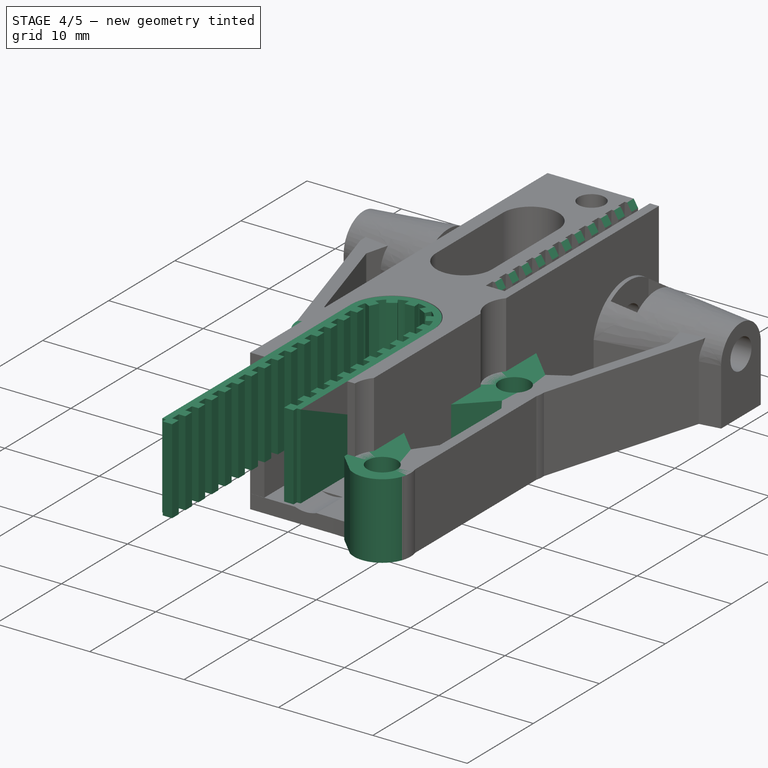
[diagram: stage 4 of 5 — iso view after this stage's code; geometry added in this stage tinted green]
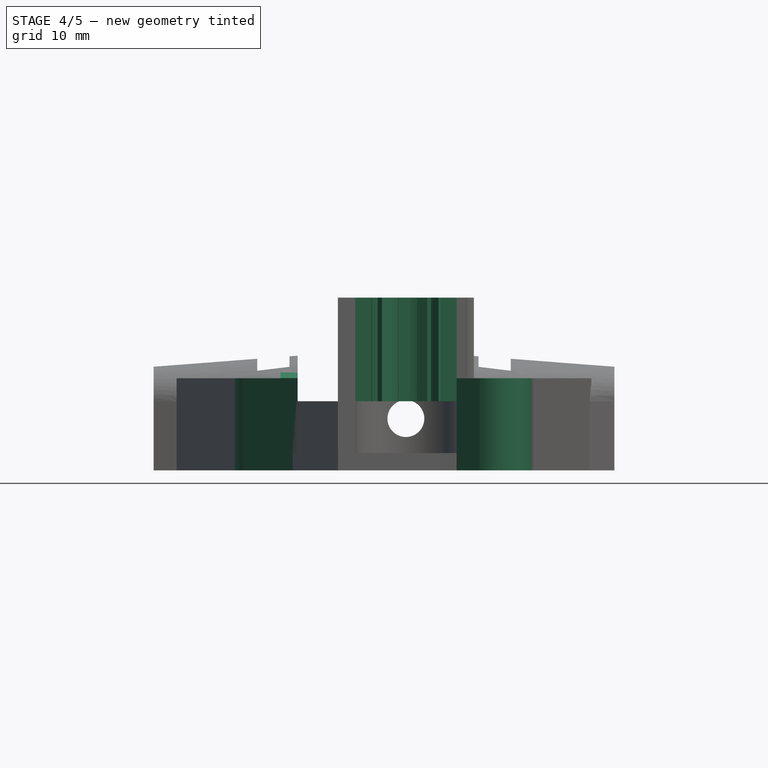
[diagram: stage 4 of 5 — front view after this stage's code; geometry added in this stage tinted green]
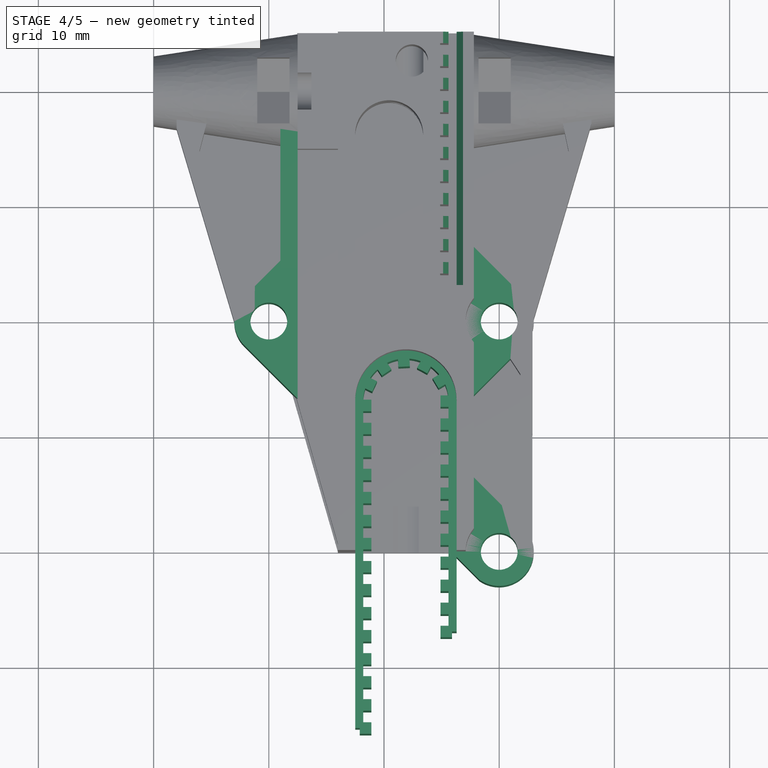
[diagram: stage 4 of 5 — top view after this stage's code; geometry added in this stage tinted green]
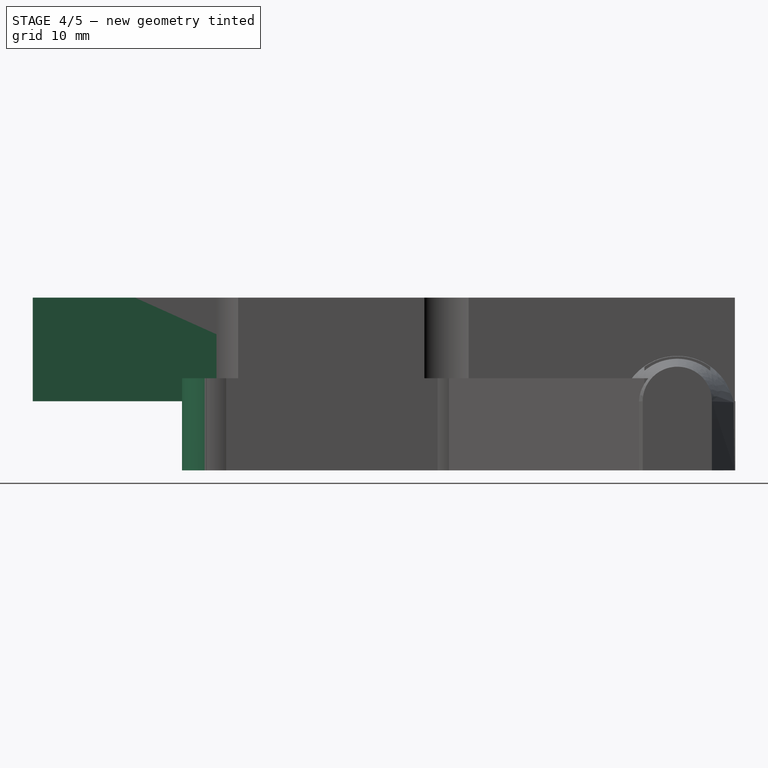
[diagram: stage 4 of 5 — right view after this stage's code; geometry added in this stage tinted green]
FEATURE [Part::Extrusion] Extrude001  label="otwor sroby 2"
  Base = -> Clone2D
  Dir = (0,0,1)
  DirMode = 2
  FaceMakerClass = Part::FaceMakerBullseye
  LengthFwd = 13
  LengthRev = 0
  Solid = true
  Symmetric = false
FEATURE [Part::Extrusion] Extrude002  label="otwor sruby 3"
  Base = -> Clone2D001
  Dir = (0,0,1)
  DirMode = 2
  FaceMakerClass = Part::FaceMakerBullseye
  LengthFwd = 13
  LengthRev = 0
  Solid = true
  Symmetric = false
FEATURE [Sketcher::SketchObject] Sketch024
  sketch-geometry (4):
    g0: LineSegment StartX=6.3 StartY=-2.06878 StartZ=0 EndX=11.96 EndY=-7.72882 EndZ=0
    g1: ArcOfCircle CenterX=10 CenterY=-10 CenterZ=0 NormalX=0 NormalY=0 NormalZ=1 AngleXU=0 Radius=3 StartAngle=4.10571 EndAngle=7.14199
    g2: LineSegment StartX=6.3 StartY=-2.06878 StartZ=0 EndX=6.3 EndY=-10.4751 EndZ=0
    g3: LineSegment StartX=6.3 StartY=-10.4751 StartZ=0 EndX=8.28958 EndY=-12.4646 EndZ=0
  constraints (11):
    c: Coincident(g1,g0)
    c: Coincident(g0,g2)
    c: Vertical(g2)
    c: Coincident(g2,g3)
    c: Coincident(g3,g1)
    c: Radius(g1) = 3
    c: DistanceX(g-1,g1) = 10
    c: DistanceY(g1) = -10
    c: Angle(g2,g0) = 0.785398
    c: DistanceX(g0) = 6.3
    c: Angle(g3,g2) = 2.35619
FEATURE [Sketcher::SketchObject] Sketch025
  sketch-geometry (4):
    g0: LineSegment StartX=6.3 StartY=17.9426 StartZ=0 EndX=6.3 EndY=2.05736 EndZ=0
    g1: LineSegment StartX=6.3 StartY=2.05736 StartZ=0 EndX=12.1197 EndY=7.87709 EndZ=0
    g2: LineSegment StartX=6.3 StartY=17.9426 StartZ=0 EndX=12.1197 EndY=12.1229 EndZ=0
    g3: ArcOfCircle CenterX=10 CenterY=10 CenterZ=0 NormalX=0 NormalY=0 NormalZ=1 AngleXU=0 Radius=3 StartAngle=5.49704 EndAngle=7.06933
  constraints (11):
    c: Vertical(g0)
    c: Coincident(g0,g1)
    c: Coincident(g0,g2)
    c: Coincident(g3,g2)
    c: Coincident(g3,g1)
    c: Radius(g3) = 3
    c: Angle(g0,g2) = 0.785398
    c: DistanceY(g3) = 10
    c: DistanceX(g-1,g3) = 10
    c: DistanceX(g-1,g0) = 6.3
    c: Angle(g1,g0) = 0.785398
FEATURE [Sketcher::SketchObject] Sketch026
  sketch-geometry (4):
    g0: LineSegment StartX=-7.5 StartY=16.7426 StartZ=0 EndX=-7.5 EndY=3.25737 EndZ=0
    g1: LineSegment StartX=-7.5 StartY=3.25737 StartZ=0 EndX=-12.125 EndY=7.88232 EndZ=0
    g2: LineSegment StartX=-7.5 StartY=16.7426 StartZ=0 EndX=-12.1212 EndY=12.1215 EndZ=0
    g3: ArcOfCircle CenterX=-10 CenterY=10 CenterZ=0 NormalX=0 NormalY=0 NormalZ=1 AngleXU=0 Radius=3 StartAngle=2.35613 EndAngle=3.92528
  constraints (11):
    c: Vertical(g0)
    c: Coincident(g0,g1)
    c: Coincident(g0,g2)
    c: Coincident(g3,g2)
    c: Coincident(g3,g1)
    c: DistanceX(g3) = -10
    c: DistanceY(g3) = 10
    c: Angle(g2,g0) = 0.785398
    c: Angle(g0,g1) = 0.785398
    c: Radius(g3) = 3
    c: DistanceX(g0,g-1) = 7.5
FEATURE [Part::Part2DObjectPython] DWire018  # Draft 2D object (typed FeaturePython)
  Base = -> Sketch026
  ChamferSize = 0
  Closed = true
  End = (-12.1213,12.1213,20)
  FilletRadius = 0
  Length = 54.7511
  MakeFace = true
  Points = (4) [(-2.53946,21.7032,20),(-2.53946,-1.70318,20),(-12.1226,7.87994,20),(-12.1213,12.1213,20)]
  Start = (-2.53946,21.7032,20)
  Subdivisions = 0
FEATURE [Part::Part2DObjectPython] DWire019  # Draft 2D object (typed FeaturePython)
  Base = -> Sketch025
  ChamferSize = 0
  Closed = true
  End = (12.1183,12.1243,20)
  FilletRadius = 0
  Length = 43.833
  MakeFace = true
  Points = (4) [(4.8,19.4426,20),(4.8,0.557365,20),(12.1178,7.87518,20),(12.1183,12.1243,20)]
  Start = (4.8,19.4426,20)
  Subdivisions = 0
FEATURE [Part::Part2DObjectPython] DWire020  # Draft 2D object (typed FeaturePython)
  Base = -> Sketch024
  ChamferSize = 0
  Closed = true
  End = (4.8,-8.97754,20)
  FilletRadius = 0
  Length = 29.4476
  MakeFace = true
  Points = (4) [(4.8,-0.569028,20),(11.9583,-7.72729,20),(8.28142,-12.459,20),(4.8,-8.97754,20)]
  Start = (4.8,-0.569028,20)
  Subdivisions = 0
FEATURE [Part::Extrusion] Extrude021  label="prawa dolna podporka"
  Base = -> DWire020
  Dir = (0,0,1)
  DirMode = 2
  FaceMakerClass = Part::FaceMakerBullseye
  LengthFwd = 8
  LengthRev = 0
  Solid = true
  Symmetric = false
FEATURE [Part::Extrusion] Extrude022  label="prawa gprna podporka"
  Base = -> DWire019
  Dir = (0,0,1)
  DirMode = 2
  FaceMakerClass = Part::FaceMakerBullseye
  LengthFwd = 8
  LengthRev = 0
  Solid = true
  Symmetric = false
FEATURE [Part::Extrusion] Extrude023  label="lewa podporka"
  Base = -> DWire018
  Dir = (0,0,1)
  DirMode = 2
  FaceMakerClass = Part::FaceMakerBullseye
  LengthFwd = 8
  LengthRev = 0
  Solid = true
  Symmetric = false
FEATURE [Part::Cut] Cut  label="prawa gorna podporka z otworem"
  Base = -> Extrude022
  Refine = true
  Tool = -> Extrude
FEATURE [Part::Cut] Cut016  label="lewa podporka z otworem"
  Base = -> Extrude023
  Refine = true
  Tool = -> Extrude001
FEATURE [Part::Cut] Cut017  label="parwa dolna podporka z otworem"
  Base = -> Extrude021
  Refine = true
  Tool = -> Extrude002
FEATURE [Sketcher::SketchObject] Sketch030
  Placement = pos=(-9,0,0) rot=(0.57735,0.57735,0.57735;2.0944rad)
  sketch-geometry (4):
    g0: LineSegment StartX=26.9146 StartY=8.5101 StartZ=0 EndX=26.9146 EndY=0.0100958 EndZ=0
    g1: LineSegment StartX=26.9146 StartY=0.0100958 StartZ=0 EndX=14.5704 EndY=0.0174217 EndZ=0
    g2: LineSegment StartX=14.5704 StartY=0.0174217 StartZ=0 EndX=14.5704 EndY=8.01742 EndZ=0
    g3: LineSegment StartX=14.5704 StartY=8.01742 StartZ=0 EndX=26.9146 EndY=8.5101 EndZ=0
  constraints (8):
    c: Coincident(g0,g1)
    c: Coincident(g1,g2)
    c: Coincident(g2,g3)
    c: Coincident(g3,g0)
    c: DistanceY(g2,g2) = 8
    c: Parallel(g2,g-2)
    c: Parallel(g0,g-2)
    c: Distance(g0) = 8.5
FEATURE [Part::Part2DObjectPython] DWire024  # Draft 2D object (typed FeaturePython)
  Base = -> Sketch030
  ChamferSize = 0
  Closed = true
  End = (-30,9.98047,8.09032)
  FilletRadius = 0
  Length = 57.6331
  MakeFace = true
  Points = (4) [(-30,29.9565,9.64417),(-30,29.8478,0.024976),(-30,9.87173,0.0903207),(-30,9.98047,8.09032)]
  Start = (-30,29.9565,9.64417)
  Subdivisions = 0
FEATURE [Part::Extrusion] Extrude028
  Base = -> DWire024
  Dir = (1,0,0)
  DirMode = 0
  FaceMakerClass = Part::FaceMakerBullseye
  LengthFwd = 1.5
  LengthRev = 0
  Solid = true
  Symmetric = false
FEATURE [Part::Cut] Cut018  label="lewy wspornik"
  Base = -> Extrude028
  Refine = true
  Tool = -> Part__Mirroring005
FEATURE [Sketcher::SketchObject] Sketch038  label="pasek zawiniety"
  Placement = pos=(0,-2,6) rot=(0,0,1;0rad)
  sketch-geometry (3):
    g0: LineSegment StartX=5.6 StartY=-15.0774 StartZ=0 EndX=5.6 EndY=4.92259 EndZ=0
    g1: ArcOfCircle CenterX=1.9 CenterY=4.92258 CenterZ=0 NormalX=0 NormalY=0 NormalZ=1 AngleXU=0 Radius=3.7 StartAngle=4.39551e-06 EndAngle=3.1416
    g2: LineSegment StartX=-1.8 StartY=4.92256 StartZ=0 EndX=-1.8 EndY=-23.4535 EndZ=0
  constraints (9):
    c: Vertical(g0)
    c: Coincident(g1,g0)
    c: Coincident(g2,g1)
    c: Vertical(g2)
    c: DistanceX(g0) = 5.6
    c: DistanceX(g1) = -1.8
    c: Radius(g1) = 3.7
    c: DistanceY(g0,g0) = 20
    c: DistanceY(g2,g2) = 28.3761
FEATURE [Sketcher::SketchObject] Sketch039
  Placement = pos=(0,0,-0.7) rot=(0,0,1;0rad)
  sketch-geometry (4):
    g0: LineSegment StartX=-0.5 StartY=9 StartZ=0 EndX=0.5 EndY=9 EndZ=0
    g1: LineSegment StartX=0.5 StartY=9 StartZ=0 EndX=0.5 EndY=0 EndZ=0
    g2: LineSegment StartX=0.5 StartY=0 StartZ=0 EndX=-0.5 EndY=0 EndZ=0
    g3: LineSegment StartX=-0.5 StartY=0 StartZ=0 EndX=-0.5 EndY=9 EndZ=0
  constraints (12):
    c: Coincident(g0,g1)
    c: Coincident(g1,g2)
    c: Coincident(g2,g3)
    c: Coincident(g3,g0)
    c: Horizontal(g0)
    c: Horizontal(g2)
    c: Vertical(g1)
    c: Vertical(g3)
    c: DistanceY(g1,g1) = 9
    c: DistanceX(g0,g0) = 1
    c: DistanceX(g0) = -0.5
    c: DistanceY(g1) = 0
FEATURE [Part::Part2DObjectPython] DWire032  # Draft 2D object (typed FeaturePython)
  Base = -> Sketch039
  ChamferSize = 0
  Closed = true
  End = (0,-14.0273,20)
  FilletRadius = 0
  Length = 3.23757
  MakeFace = true
  Points = (4) [(0,-13.0432,20),(0.634686,-13.0432,20),(0.634686,-14.0273,20),(0,-14.0273,20)]
  Start = (0,-13.0432,20)
  Subdivisions = 0
FEATURE [Part::Extrusion] Extrude036  label="zab zawiniety"
  Base = -> DWire032
  Dir = (0,0,1)
  DirMode = 2
  FaceMakerClass = Part::FaceMakerBullseye
  LengthFwd = 1
  LengthRev = 0
  Solid = true
  Symmetric = false
FEATURE [Part::FeaturePython] PathArray001  label="zeby paska zawinietego"  # WARN: FeaturePython — macro-defined, semantics opaque (R4)
  Align = true
  Base = -> Extrude036
  Count = 31
  PathObj = -> Sketch038
  Xlate = (0,0,0)
FEATURE [Sketcher::SketchObject] Sketch040
  Placement = pos=(0,0,0) rot=(1,0,0;1.5708rad)
  sketch-geometry (4):
    g0: LineSegment StartX=5.6 StartY=15 StartZ=0 EndX=6.3 EndY=15 EndZ=0
    g1: LineSegment StartX=6.3 StartY=15 StartZ=0 EndX=6.3 EndY=6 EndZ=0
    g2: LineSegment StartX=6.3 StartY=6 StartZ=0 EndX=5.6 EndY=6 EndZ=0
    g3: LineSegment StartX=5.6 StartY=6 StartZ=0 EndX=5.6 EndY=15 EndZ=0
  constraints (12):
    c: Coincident(g0,g1)
    c: Coincident(g1,g2)
    c: Coincident(g2,g3)
    c: Coincident(g3,g0)
    c: Horizontal(g0)
    c: Horizontal(g2)
    c: Vertical(g1)
    c: Vertical(g3)
    c: DistanceY(g3,g3) = 9
    c: DistanceX(g0,g0) = 0.7
    c: DistanceY(g2) = 6
    c: DistanceX(g1) = 6.3
FEATURE [Part::Part2DObjectPython] DWire033  label="przekroj paska"  # Draft 2D object (typed FeaturePython)
  Base = -> Sketch040
  ChamferSize = 0
  Closed = true
  End = (5.6,-28,6)
  FilletRadius = 0
  Length = 19.4
  MakeFace = true
  Points = (4) [(5.6,-28,15),(6.3,-28,15),(6.3,-28,6),(5.6,-28,6)]
  Start = (5.6,-28,15)
  Subdivisions = 0
FEATURE [Part::Sweep] Sweep  label="tasma paska zawinietego"
  Frenet = false
  Sections = -> [DWire033]
  Solid = true
  Spine = -> Sketch038 [Edge3,Edge2,Edge1]
  Transition = 1
FEATURE [Part::MultiFuse] Fusion004  label="wregi"
  Refine = true
  Shapes = -> [Cut023,Cut022,Cut018,Cut017,Cut016,Cut]
FEATURE [Sketcher::SketchObject] Sketch044
  Placement = pos=(0,13,0) rot=(-1,0,0;4.71239rad)
  sketch-geometry (4):
    g0: LineSegment StartX=6.0294 StartY=13.5071 StartZ=0 EndX=7.27816 EndY=15.7719 EndZ=0
    g1: LineSegment StartX=7.27816 StartY=15.7719 StartZ=0 EndX=4.69244 EndY=15.721 EndZ=0
    g2: LineSegment StartX=4.69244 StartY=15.721 StartZ=0 EndX=6.0294 EndY=13.5071 EndZ=0
    g3: Circle [constr] CenterX=6 CenterY=15 CenterZ=0 NormalX=0 NormalY=0 NormalZ=1 AngleXU=0 Radius=1.49316
  constraints (10):
    c: Coincident(g0,g1)
    c: Coincident(g1,g2)
    c: Coincident(g2,g0)
    c: Equal(g0,g1)
    c: Equal(g0,g2)
    c: PointOnObject(g0,g3)
    c: PointOnObject(g1,g3)
    c: PointOnObject(g2,g3)
    c: DistanceX(g3) = 6
    c: DistanceY(g3) = 15
FEATURE [Part::Part2DObjectPython] DWire037  # Draft 2D object (typed FeaturePython)
  Base = -> Sketch044
  ChamferSize = 0
  Closed = true
  End = (4.76479,50,15.9309)
  FilletRadius = 0
  Length = 7.15035
  MakeFace = true
  Points = (3) [(5.95652,50,13.8668),(7.14824,50,15.9309),(4.76479,50,15.9309)]
  Start = (5.95652,50,13.8668)
  Subdivisions = 0
FEATURE [Part::Extrusion] Extrude040  label="wyciecie do paska wsuwania"
  Base = -> DWire037
  Dir = (0,1,0)
  DirMode = 0
  FaceMakerClass = Part::FaceMakerBullseye
  LengthFwd = 22
  LengthRev = 0
  Solid = true
  Symmetric = false
FEATURE [Part::MultiFuse] Fusion010  label="korpus"
  Refine = true
  Shapes = -> [Fusion004,Fusion007,Fusion008,Fusion009]
FEATURE [Part::Cut] Cut042  label="wozek"
  Base = -> Fusion010
  Refine = true
  Tool = -> Extrude040
FEATURE [Part::Cut] Cut043  label="wozek bez lba sruby naciagu"
  Base = -> Cut042
  Refine = true
  Tool = -> Extrude041
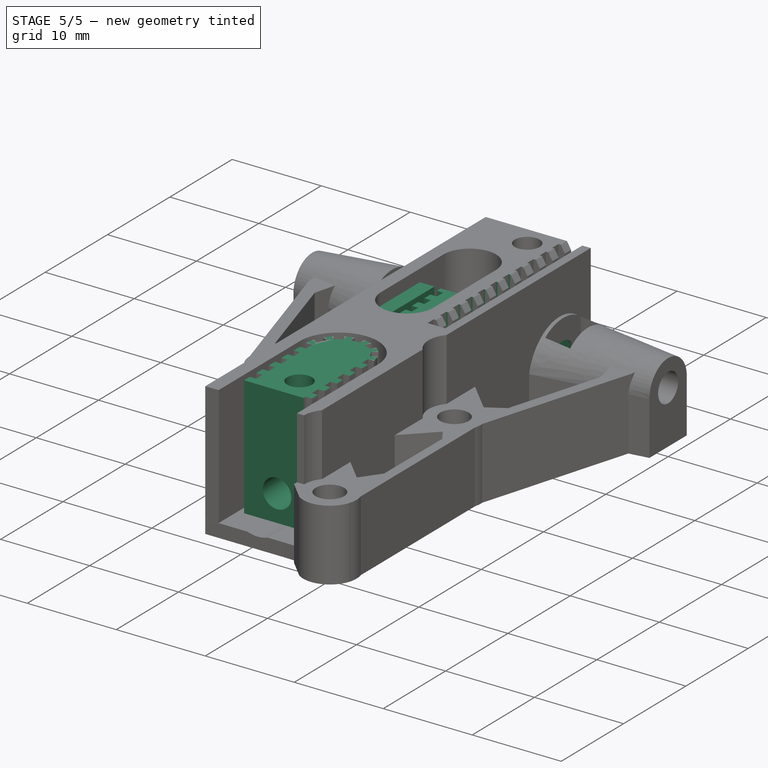
[diagram: stage 5 of 5 — iso view after this stage's code; geometry added in this stage tinted green]
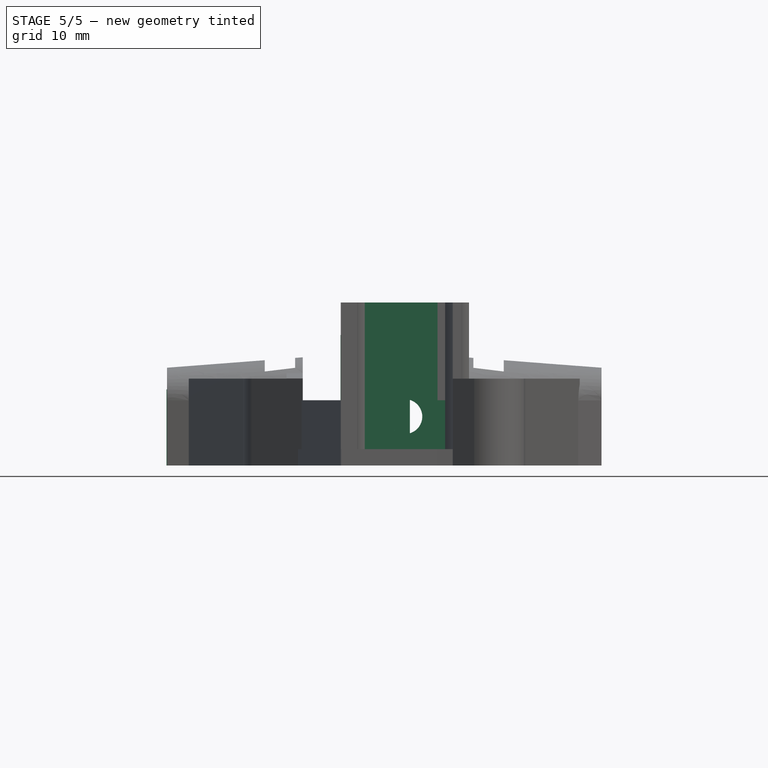
[diagram: stage 5 of 5 — front view after this stage's code; geometry added in this stage tinted green]
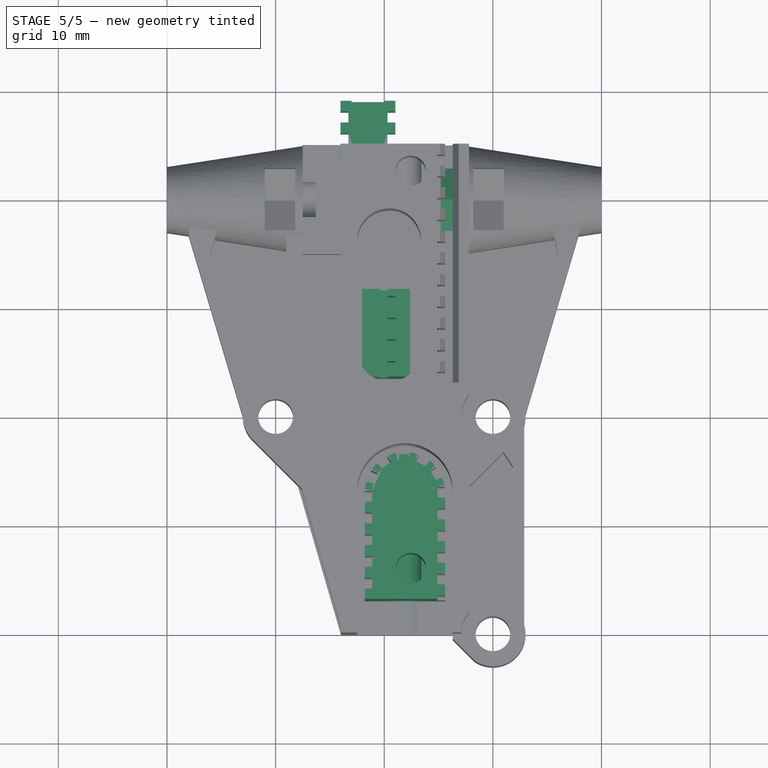
[diagram: stage 5 of 5 — top view after this stage's code; geometry added in this stage tinted green]
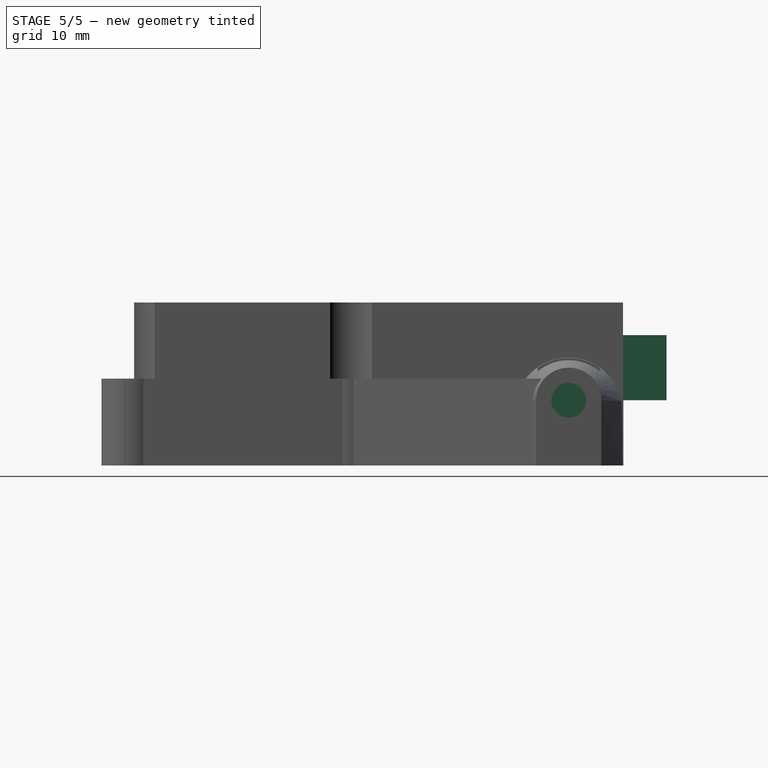
[diagram: stage 5 of 5 — right view after this stage's code; geometry added in this stage tinted green]
FEATURE [Part::FeaturePython] Clone  label="nakretka001"  # Draft clone (typed FeaturePython)
  AttacherType = Attacher::AttachEngine3D
  Fuse = false
  Objects = -> [Extrude004]
  Placement = pos=(8,0,0) rot=(0,0,1;0rad)
  Scale = (1,1,1)
FEATURE [Part::FeaturePython] Array  label="zeby"  # Draft array (typed FeaturePython)
  Angle = 360
  ArrayType = 0
  Axis = (0,0,1)
  Base = -> Extrude007
  Center = (0,0,0)
  Fuse = false
  IntervalAxis = (0,0,0)
  IntervalX = (1,0,0)
  IntervalY = (0,2,0)
  IntervalZ = (0,0,0)
  NumberPolar = 1
  NumberX = 1
  NumberY = 6
  NumberZ = 1
  Placement = pos=(4,16,0) rot=(0,0,1;0rad)
FEATURE [Sketcher::SketchObject] Sketch013
  sketch-geometry (4):
    g0: LineSegment StartX=-1.8 StartY=2.93314 StartZ=0 EndX=-1.8 EndY=-6.90365 EndZ=0
    g1: LineSegment StartX=-1.8 StartY=-6.90365 StartZ=0 EndX=5.6 EndY=-6.90365 EndZ=0
    g2: LineSegment StartX=5.6 StartY=-6.90365 StartZ=0 EndX=5.6 EndY=2.93314 EndZ=0
    g3: ArcOfCircle CenterX=1.9 CenterY=2.93314 CenterZ=0 NormalX=0 NormalY=0 NormalZ=1 AngleXU=0 Radius=3.7 StartAngle=6.28319 EndAngle=9.42478
  constraints (10):
    c: Coincident(g0,g1)
    c: Coincident(g1,g2)
    c: Horizontal(g1)
    c: Vertical(g0)
    c: Vertical(g2)
    c: DistanceX(g1) = 5.6
    c: DistanceX(g0) = -1.8
    c: Coincident(g3,g0)
    c: Coincident(g3,g2)
    c: Radius(g3) = 3.7
FEATURE [Part::Part2DObjectPython] DWire008  # Draft 2D object (typed FeaturePython)
  Base = -> Sketch013
  ChamferSize = 0
  Closed = true
  End = (3.99106,-14.6089,0)
  FilletRadius = 0
  Length = 31.1526
  MakeFace = true
  Points = (4) [(3.99106,-3.02363,0),(0,-3.02363,0),(0,-14.6089,0),(3.99106,-14.6089,0)]
  Start = (3.99106,-3.02363,0)
  Subdivisions = 0
FEATURE [Part::Extrusion] Extrude012  label="naciag"
  Base = -> DWire008
  Dir = (0,0,1)
  DirMode = 0
  FaceMakerClass = Part::FaceMakerBullseye
  LengthFwd = 13.5
  LengthRev = 0
  Placement = pos=(0,0,1.5) rot=(0,0,1;0rad)
  Solid = true
  Symmetric = false
FEATURE [Sketcher::SketchObject] Sketch017
  sketch-geometry (4):
    g0: LineSegment StartX=20.046 StartY=30.1986 StartZ=0 EndX=10.9697 EndY=30.1986 EndZ=0
    g1: LineSegment StartX=10.9697 StartY=30.1986 StartZ=0 EndX=10.9697 EndY=29.7986 EndZ=0
    g2: LineSegment StartX=10.9697 StartY=29.7986 StartZ=0 EndX=20.046 EndY=29.7986 EndZ=0
    g3: LineSegment StartX=20.046 StartY=29.7986 StartZ=0 EndX=20.046 EndY=30.1986 EndZ=0
  constraints (9):
    c: Coincident(g0,g1)
    c: Coincident(g1,g2)
    c: Coincident(g2,g3)
    c: Coincident(g3,g0)
    c: Horizontal(g0)
    c: Horizontal(g2)
    c: Vertical(g1)
    c: Vertical(g3)
    c: DistanceY(g3,g3) = 0.4
FEATURE [Part::Part2DObjectPython] DWire012  # Draft 2D object (typed FeaturePython)
  Base = -> Sketch017
  ChamferSize = 0
  Closed = true
  End = (20.046,29.7986,0)
  FilletRadius = 0
  Length = 18.9526
  MakeFace = true
  Points = (4) [(20.046,30.1986,0),(10.9697,30.1986,0),(10.9697,29.7986,0),(20.046,29.7986,0)]
  Start = (20.046,30.1986,0)
  Subdivisions = 0
FEATURE [Part::Extrusion] Extrude016  label="podporka"
  Base = -> DWire012
  Dir = (0,0,1)
  DirMode = 0
  FaceMakerClass = Part::FaceMakerBullseye
  LengthFwd = 7
  LengthRev = 0
  Solid = false
  Symmetric = false
FEATURE [Part::Mirroring] Part__Mirroring003  label="podporka (Mirror #4)"
  Base = (0,0,0)
  Normal = (1,0,0)
  Source = -> Extrude016
FEATURE [Sketcher::SketchObject] Sketch023
  sketch-geometry (4):
    g0: LineSegment StartX=-2.04341 StartY=21.642 StartZ=0 EndX=2.36411 EndY=21.642 EndZ=0
    g1: LineSegment StartX=2.36411 StartY=21.642 StartZ=0 EndX=2.36411 EndY=13.5827 EndZ=0
    g2: LineSegment StartX=2.36411 StartY=13.5827 StartZ=0 EndX=-2.04341 EndY=13.5827 EndZ=0
    g3: LineSegment StartX=-2.04341 StartY=13.5827 StartZ=0 EndX=-2.04341 EndY=21.642 EndZ=0
  constraints (8):
    c: Coincident(g0,g1)
    c: Coincident(g1,g2)
    c: Coincident(g2,g3)
    c: Coincident(g3,g0)
    c: Horizontal(g0)
    c: Horizontal(g2)
    c: Vertical(g1)
    c: Vertical(g3)
FEATURE [Part::Part2DObjectPython] DWire017  # Draft 2D object (typed FeaturePython)
  Base = -> Sketch023
  ChamferSize = 0
  Closed = true
  End = (-2.04341,13.5827,0)
  FilletRadius = 0
  Length = 59.1389
  MakeFace = true
  Points = (4) [(-2.04341,37.0219,0),(4.08683,37.0219,0),(4.08683,13.5827,0),(-2.04341,13.5827,0)]
  Start = (-2.04341,37.0219,0)
  Subdivisions = 0
FEATURE [Part::Extrusion] Extrude020
  Base = -> DWire017
  Dir = (0,0,1)
  DirMode = 0
  FaceMakerClass = Part::FaceMakerBullseye
  LengthFwd = 14
  LengthRev = 0
  Solid = false
  Symmetric = false
FEATURE [Part::Cut] Cut015  label="test_wyciecie na pasek"
  Base = -> Extrude020
  Tool = -> Fusion002
FEATURE [Part::FeaturePython] Clone005  label="pasek001"  # Draft clone (typed FeaturePython)
  AttacherType = Attacher::AttachEngine3D
  Fuse = false
  Objects = -> [Fusion002]
  Scale = (1,1,1)
FEATURE [Part::Mirroring] Part__Mirroring004  label="pasek001 (Mirror #5)"
  Base = (0,0,0)
  Normal = (1,0,0)
  Placement = pos=(-3,0,0) rot=(0,0,1;0rad)
  Source = -> Clone005
FEATURE [Sketcher::SketchObject] Sketch027
  sketch-geometry (4):
    g0: LineSegment StartX=-3.09547 StartY=38.8701 StartZ=0 EndX=0 EndY=38.8701 EndZ=0
    g1: LineSegment StartX=0 StartY=38.8701 StartZ=0 EndX=0 EndY=33.986 EndZ=0
    g2: LineSegment StartX=0 StartY=33.986 StartZ=0 EndX=-3.09547 EndY=33.986 EndZ=0
    g3: LineSegment StartX=-3.09547 StartY=33.986 StartZ=0 EndX=-3.09547 EndY=38.8701 EndZ=0
  constraints (9):
    c: Coincident(g0,g1)
    c: Coincident(g1,g2)
    c: Coincident(g2,g3)
    c: Coincident(g3,g0)
    c: Horizontal(g0)
    c: Horizontal(g2)
    c: Vertical(g1)
    c: Vertical(g3)
    c: PointOnObject(g1,g-2)
FEATURE [Part::Part2DObjectPython] DWire021  # Draft 2D object (typed FeaturePython)
  Base = -> Sketch027
  ChamferSize = 0
  Closed = true
  End = (-3.92615,34.0105,0)
  FilletRadius = 0
  Length = 17.6204
  MakeFace = true
  Points = (4) [(-3.92615,38.8945,0),(0,38.8945,0),(0,34.0105,0),(-3.92615,34.0105,0)]
  Start = (-3.92615,38.8945,0)
  Subdivisions = 0
FEATURE [Part::Extrusion] Extrude024
  Base = -> DWire021
  Dir = (0,0,1)
  DirMode = 2
  FaceMakerClass = Part::FaceMakerBullseye
  LengthFwd = 6
  LengthRev = 0
  Placement = pos=(0,0,6) rot=(0,0,1;0rad)
  Solid = false
  Symmetric = false
FEATURE [Part::MultiFuse] Fusion003
  Shapes = -> [Fusion002,Part__Mirroring004,Extrude024]
FEATURE [Sketcher::SketchObject] Sketch028
  sketch-geometry (4):
    g0: LineSegment StartX=-6.62579 StartY=40.0185 StartZ=0 EndX=2.41401 EndY=40.0185 EndZ=0
    g1: LineSegment StartX=2.41401 StartY=40.0185 StartZ=0 EndX=2.41401 EndY=33.935 EndZ=0
    g2: LineSegment StartX=2.41401 StartY=33.935 StartZ=0 EndX=-6.62579 EndY=33.935 EndZ=0
    g3: LineSegment StartX=-6.62579 StartY=33.935 StartZ=0 EndX=-6.62579 EndY=40.0185 EndZ=0
  constraints (8):
    c: Coincident(g0,g1)
    c: Coincident(g1,g2)
    c: Coincident(g2,g3)
    c: Coincident(g3,g0)
    c: Horizontal(g0)
    c: Horizontal(g2)
    c: Vertical(g1)
    c: Vertical(g3)
FEATURE [Part::Part2DObjectPython] DWire022  # Draft 2D object (typed FeaturePython)
  Base = -> Sketch028
  ChamferSize = 0
  Closed = true
  End = (-6.62579,33.935,0)
  FilletRadius = 0
  Length = 30.2467
  MakeFace = true
  Points = (4) [(-6.62579,40.0185,0),(2.41401,40.0185,0),(2.41401,33.935,0),(-6.62579,33.935,0)]
  Start = (-6.62579,40.0185,0)
  Subdivisions = 0
FEATURE [Part::Extrusion] Extrude025  label="maska kostki naciagu"
  Base = -> DWire022
  Dir = (0,0,1)
  DirMode = 2
  FaceMakerClass = Part::FaceMakerBullseye
  LengthFwd = 6
  LengthRev = 0
  Placement = pos=(0,0,6) rot=(0,0,1;0rad)
  Solid = false
  Symmetric = false
FEATURE [Part::MultiCommon] Common  label="TEST_kostka naciagu paska"
  Shapes = -> [Fusion003,Extrude025]
FEATURE [Part::Cut] Cut027  label="naciag001"
  Base = -> Extrude012
  Tool = -> Extrude013
FEATURE [Part::MultiFuse] Fusion  label="pasek zawiniety001"
  Shapes = -> [PathArray001,Sweep]
FEATURE [Part::Cut] Cut030  label="naciag002"
  Base = -> Cut027
  Tool = -> Fusion
FEATURE [Sketcher::SketchObject] Sketch042
  ExternalGeometry = -> [Fusion]
  Placement = pos=(0,0,5) rot=(0,0,1;0rad)
  sketch-geometry (1):
    g0: Circle CenterX=2.45051 CenterY=-4.07741 CenterZ=0 NormalX=0 NormalY=0 NormalZ=1 AngleXU=0 Radius=1.4
  constraints (3):
    c: Radius(g0) = 1.4
    c: Distance(g-4,g0) = 2.5
    c: Distance(g-3,g0) = 2.5
FEATURE [Part::Part2DObjectPython] DWire035  # Draft 2D object (typed FeaturePython)
  Base = -> Sketch042
  ChamferSize = 0
  Closed = true
  End = (0,0,0)
  FilletRadius = 0
  Length = 0
  MakeFace = true
  Points = (1) [(4.48579,-4.07741,30)]
  Start = (0,0,0)
  Subdivisions = 0
FEATURE [Part::Extrusion] Extrude038  label="otwor na wkret001"
  Base = -> DWire035
  Dir = (0,0,1)
  DirMode = 2
  FaceMakerClass = Part::FaceMakerBullseye
  LengthFwd = 10
  LengthRev = 0
  Solid = true
  Symmetric = false
FEATURE [Part::Cut] Cut037  label="naciag003"
  Base = -> Cut030
  Tool = -> Extrude038
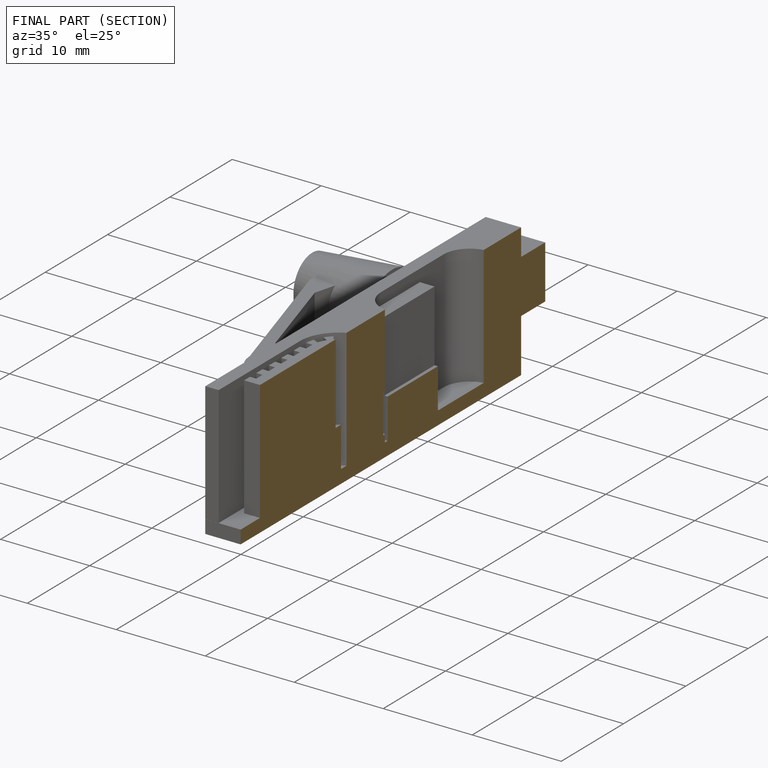
[diagram: finished part — half-section view (interior)]
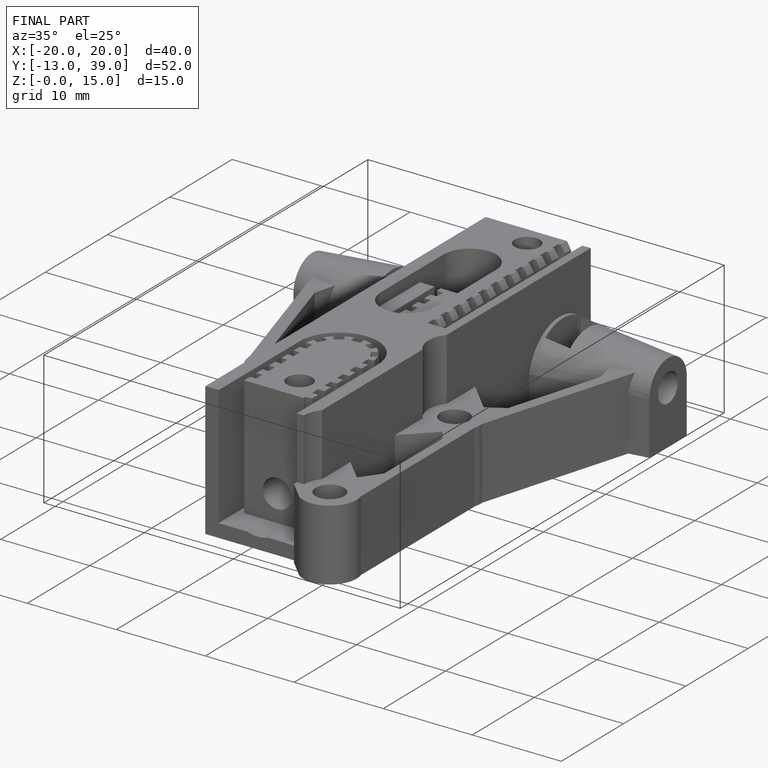
[diagram: finished part — iso view with bounding-box wireframe]
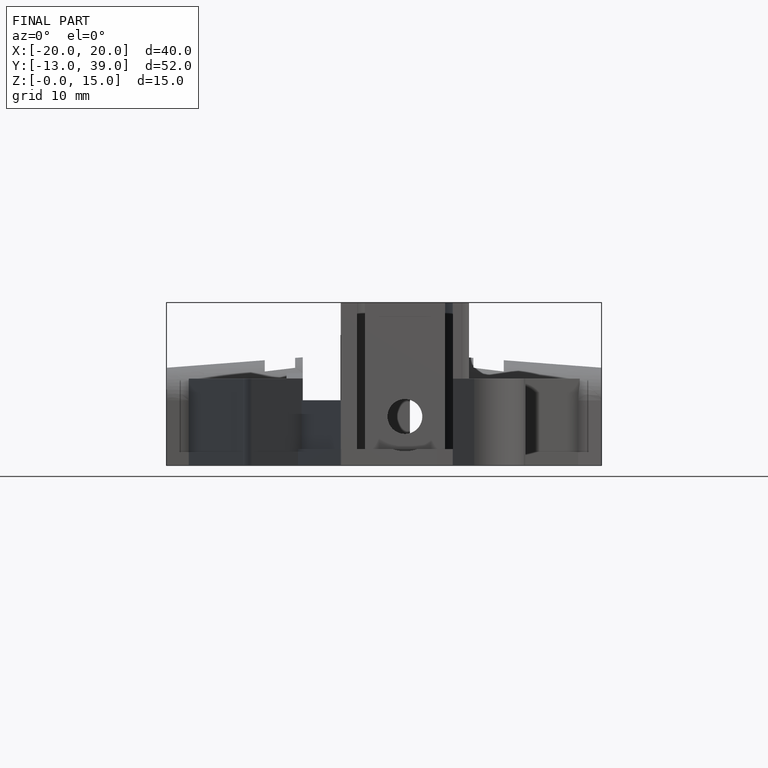
[diagram: finished part — front view with bounding-box wireframe]
